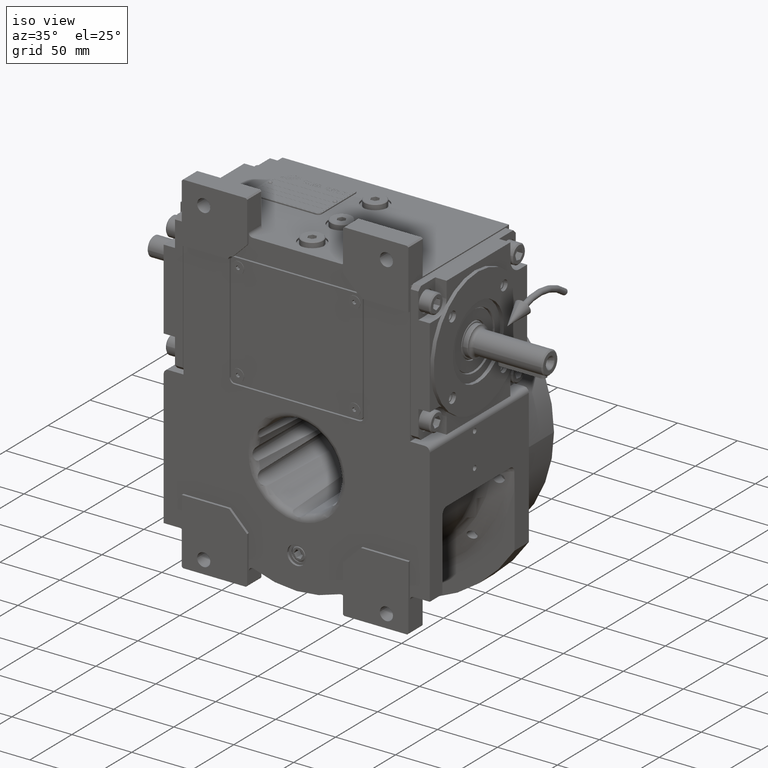
[diagram: clean part render]
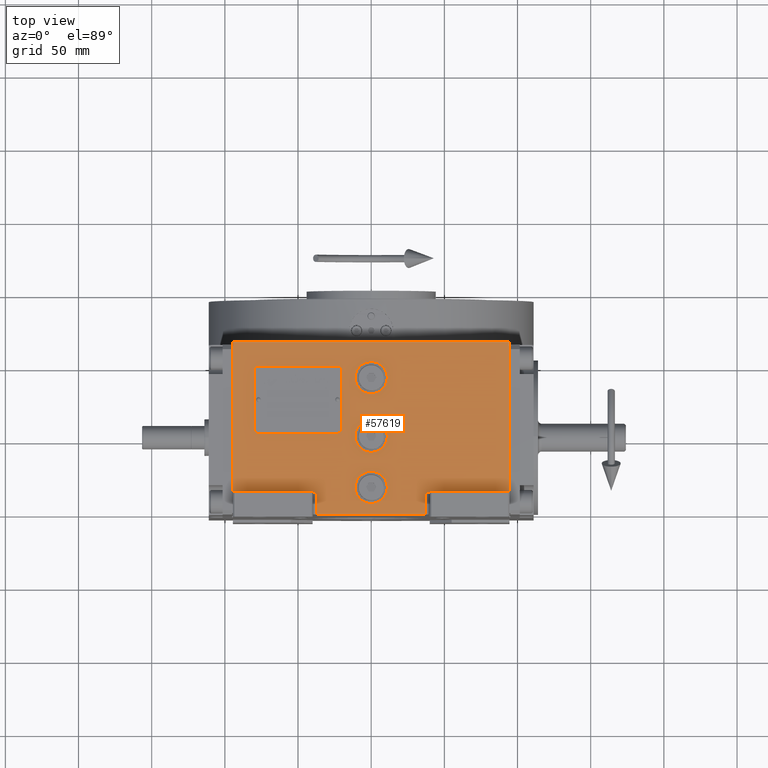
[diagram: tour spotlight — one face highlighted and labeled with its STEP entity id]
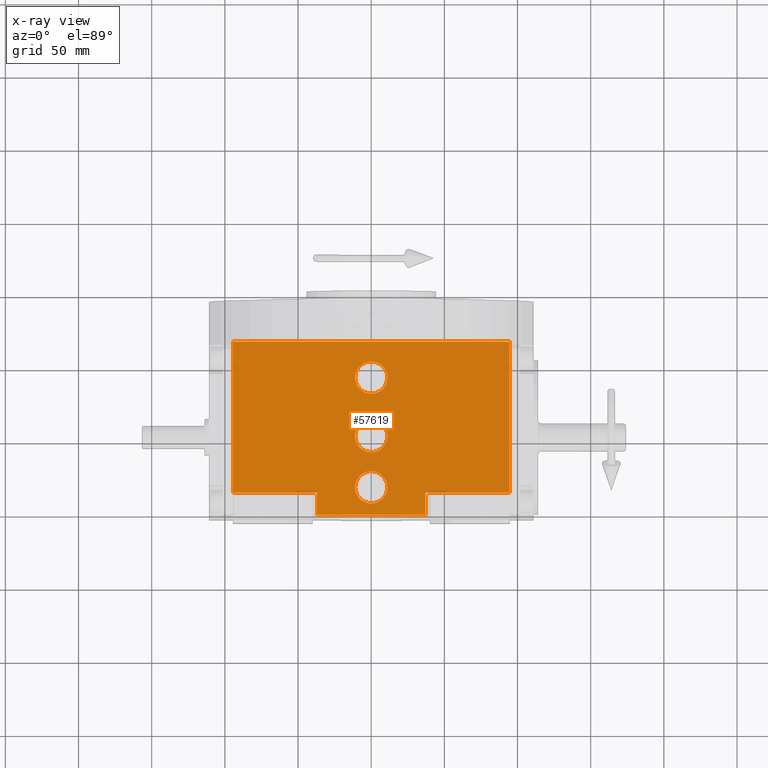
[diagram: x-ray of the same camera — body ghosted, this tour face saturated]
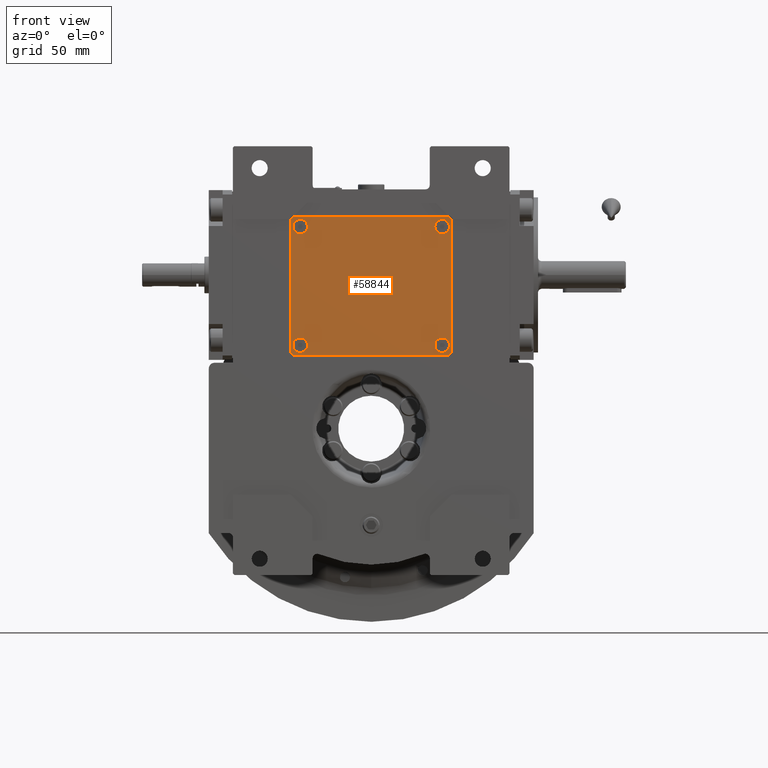
[diagram: tour spotlight — one face highlighted and labeled with its STEP entity id]
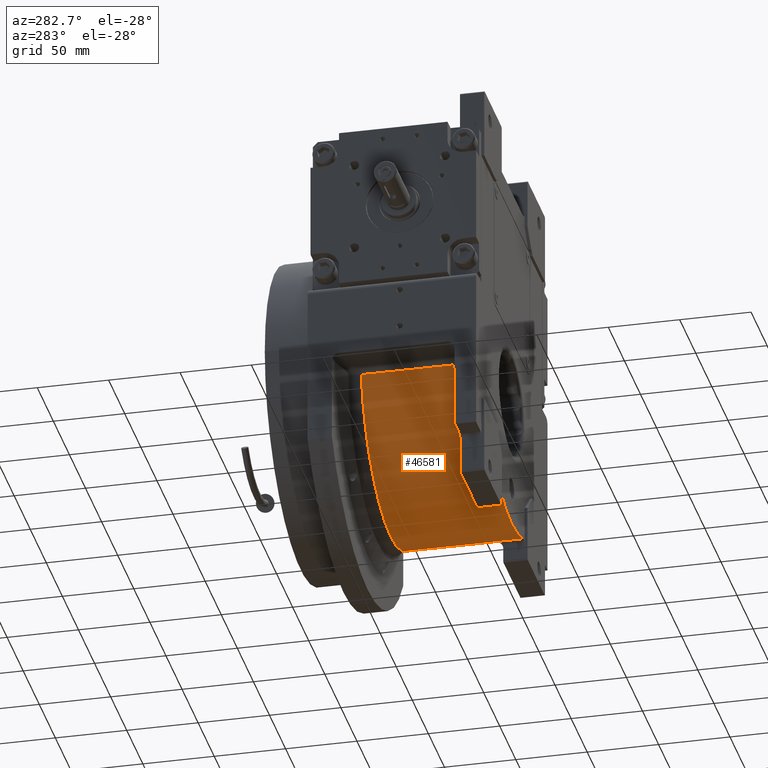
[diagram: tour spotlight — one face highlighted and labeled with its STEP entity id]
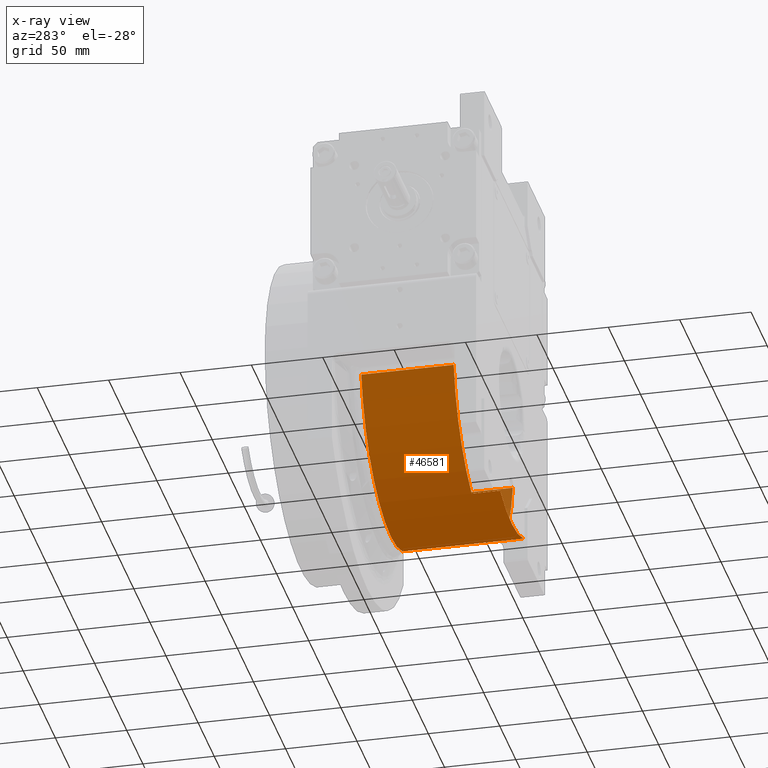
[diagram: x-ray of the same camera — body ghosted, this tour face saturated]
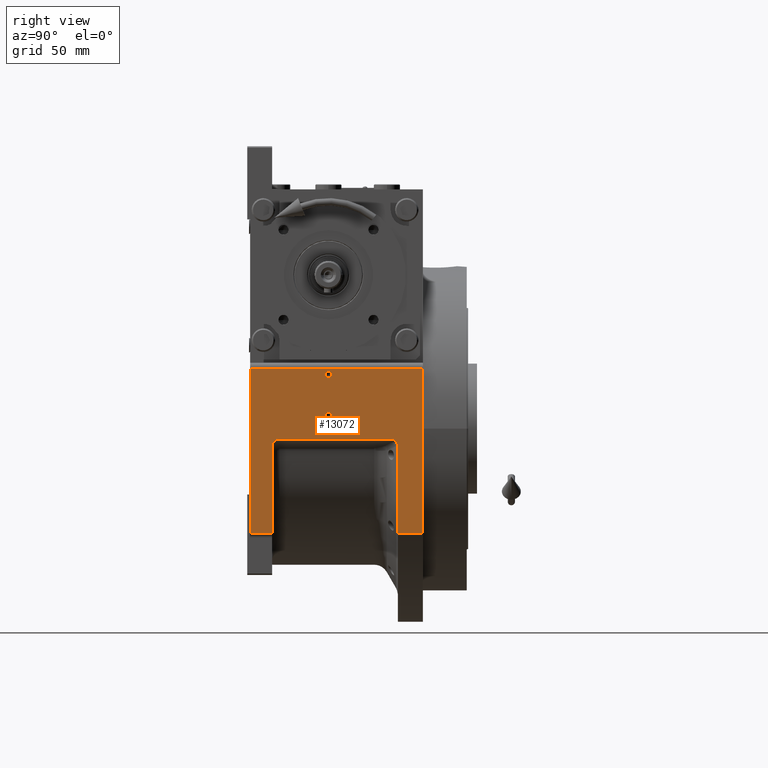
[diagram: tour spotlight — one face highlighted and labeled with its STEP entity id]
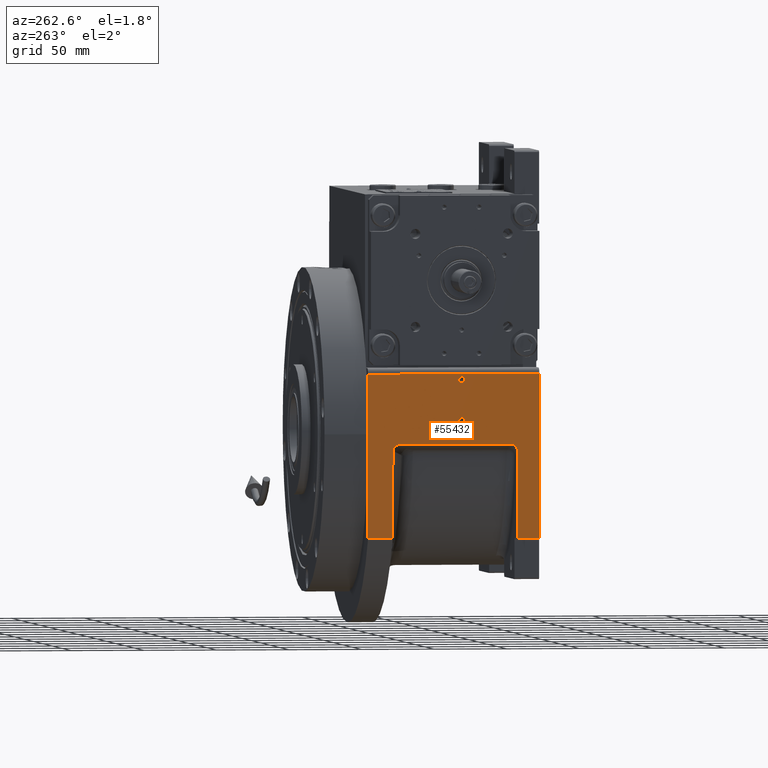
[diagram: tour spotlight — one face highlighted and labeled with its STEP entity id]
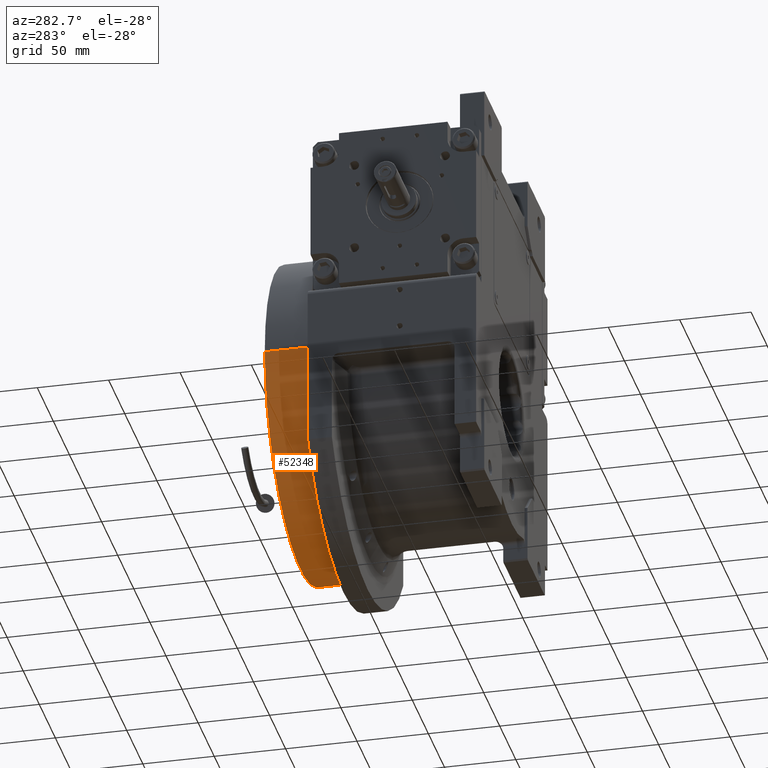
[diagram: tour spotlight — one face highlighted and labeled with its STEP entity id]
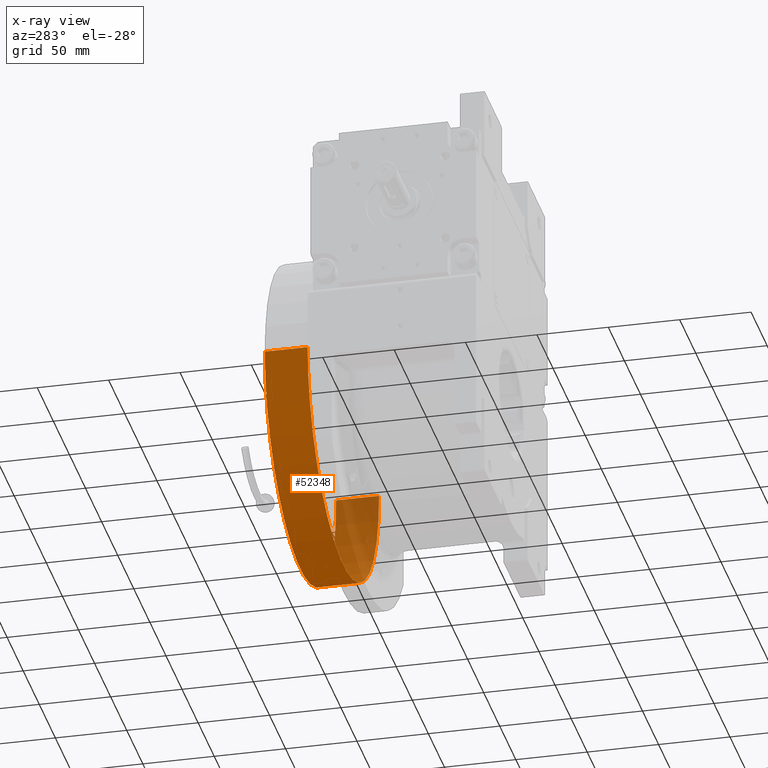
[diagram: x-ray of the same camera — body ghosted, this tour face saturated]
A machine part: a face-by-face anatomy tour. The part has 2011 B-rep faces; the first image is the clean iso view, then the 6 largest visible faces are spotlighted one at a time (largest first), each with its STEP entity span.

Face 1 — top view, entity #57619. An x-ray twin of the same camera follows (body ghosted, this face saturated) — the face is partly hidden behind the body. In plain terms, the highlighted planar face has unit normal (0, 0, 1).
Definition (entity closure, byte-faithful):
#39 = DIRECTION ( 'NONE',  ( 1.000000000000000000, 0.000000000000000000, 0.000000000000000000 ) ) ;
#88 = DIRECTION ( 'NONE',  ( 1.000000000000000000, 0.000000000000000000, 0.000000000000000000 ) ) ;
#313 = VECTOR ( 'NONE', #5441, 1000.000000000000000 ) ;
#797 = DIRECTION ( 'NONE',  ( 0.000000000000000000, 1.000000000000000000, 0.000000000000000000 ) ) ;
#820 = CARTESIAN_POINT ( 'NONE',  ( 0.000000000000000000, 40.00000000000000000, 163.5000000000000000 ) ) ;
#1831 = VECTOR ( 'NONE', #45560, 1000.000000000000000 ) ;
#2034 = ORIENTED_EDGE ( 'NONE', *, *, #5638, .F. ) ;
#2112 = CARTESIAN_POINT ( 'NONE',  ( 94.50000000000000000, 64.50000000000000000, 163.5000000000000000 ) ) ;
#2154 = CARTESIAN_POINT ( 'NONE',  ( 0.000000000000000000, -35.00000000000000000, 163.5000000000000000 ) ) ;
#2364 = VERTEX_POINT ( 'NONE', #31953 ) ;
#2459 = CARTESIAN_POINT ( 'NONE',  ( 0.000000000000000000, 40.00000000000000000, 163.5000000000000000 ) ) ;
#2936 = FACE_OUTER_BOUND ( 'NONE', #44080, .T. ) ;
#3433 = AXIS2_PLACEMENT_3D ( 'NONE', #820, #44387, #53889 ) ;
#3924 = ORIENTED_EDGE ( 'NONE', *, *, #5470, .F. ) ;
#4187 = EDGE_LOOP ( 'NONE', ( #17563, #35818 ) ) ;
#5441 = DIRECTION ( 'NONE',  ( 0.000000000000000000, 1.000000000000000000, 0.000000000000000000 ) ) ;
#5470 = EDGE_CURVE ( 'NONE', #57409, #16273, #33749, .T. ) ;
#5557 = CIRCLE ( 'NONE', #14442, 11.00000000000000000 ) ;
#5638 = EDGE_CURVE ( 'NONE', #21820, #16528, #45423, .T. ) ;
#5755 = VECTOR ( 'NONE', #797, 1000.000000000000000 ) ;
#6741 = DIRECTION ( 'NONE',  ( 0.000000000000000000, 0.000000000000000000, 1.000000000000000000 ) ) ;
#8241 = EDGE_CURVE ( 'NONE', #64306, #48248, #18570, .T. ) ;
#10480 = CIRCLE ( 'NONE', #41945, 11.00000000000000000 ) ;
#11767 = CARTESIAN_POINT ( 'NONE',  ( 94.50000000000000000, -38.50000000000000000, 163.5000000000000000 ) ) ;
#12272 = EDGE_LOOP ( 'NONE', ( #46484, #69491 ) ) ;
#12305 = AXIS2_PLACEMENT_3D ( 'NONE', #2459, #23888, #45345 ) ;
#12421 = CARTESIAN_POINT ( 'NONE',  ( -94.50000000000000000, -38.50000000000000000, 163.5000000000000000 ) ) ;
#13765 = EDGE_CURVE ( 'NONE', #55037, #48248, #67610, .T. ) ;
#13807 = FACE_BOUND ( 'NONE', #43035, .T. ) ;
#14442 = AXIS2_PLACEMENT_3D ( 'NONE', #51707, #62924, #30944 ) ;
#14476 = EDGE_CURVE ( 'NONE', #55037, #21674, #48971, .T. ) ;
#15240 = AXIS2_PLACEMENT_3D ( 'NONE', #35250, #29980, #51452 ) ;
#16273 = VERTEX_POINT ( 'NONE', #62565 ) ;
#16528 = VERTEX_POINT ( 'NONE', #2112 ) ;
#17274 = CARTESIAN_POINT ( 'NONE',  ( 36.99999999999934630, -38.50000000000000000, 163.5000000000000000 ) ) ;
#17563 = ORIENTED_EDGE ( 'NONE', *, *, #51220, .F. ) ;
#17994 = ORIENTED_EDGE ( 'NONE', *, *, #13765, .T. ) ;
#18570 = LINE ( 'NONE', #24545, #36916 ) ;
#19733 = ORIENTED_EDGE ( 'NONE', *, *, #45759, .T. ) ;
#20021 = CARTESIAN_POINT ( 'NONE',  ( 0.000000000000000000, -35.00000000000000000, 163.5000000000000000 ) ) ;
#20268 = EDGE_CURVE ( 'NONE', #21508, #43463, #10480, .T. ) ;
#20496 = CARTESIAN_POINT ( 'NONE',  ( -36.99999999999929656, -53.50000000000000000, 163.5000000000000000 ) ) ;
#21508 = VERTEX_POINT ( 'NONE', #46419 ) ;
#21674 = VERTEX_POINT ( 'NONE', #48873 ) ;
#21820 = VERTEX_POINT ( 'NONE', #23518 ) ;
#23518 = CARTESIAN_POINT ( 'NONE',  ( -94.50000000000000000, 64.50000000000000000, 163.5000000000000000 ) ) ;
#23712 = VERTEX_POINT ( 'NONE', #43840 ) ;
#23820 = VECTOR ( 'NONE', #88, 1000.000000000000000 ) ;
#23888 = DIRECTION ( 'NONE',  ( 0.000000000000000000, 0.000000000000000000, 1.000000000000000000 ) ) ;
#24365 = FACE_BOUND ( 'NONE', #4187, .T. ) ;
#24545 = CARTESIAN_POINT ( 'NONE',  ( 36.99999999999934630, -38.50000000000000000, 163.5000000000000000 ) ) ;
#26740 = LINE ( 'NONE', #54486, #67210 ) ;
#27384 = CIRCLE ( 'NONE', #28471, 11.00000000000000000 ) ;
#28440 = DIRECTION ( 'NONE',  ( 0.000000000000000000, -1.000000000000000000, 0.000000000000000000 ) ) ;
#28471 = AXIS2_PLACEMENT_3D ( 'NONE', #20021, #62536, #52376 ) ;
#29980 = DIRECTION ( 'NONE',  ( 0.000000000000000000, 0.000000000000000000, 1.000000000000000000 ) ) ;
#30862 = CARTESIAN_POINT ( 'NONE',  ( 0.000000000000000000, 0.000000000000000000, 163.5000000000000000 ) ) ;
#30944 = DIRECTION ( 'NONE',  ( 1.000000000000000000, 0.000000000000000000, 0.000000000000000000 ) ) ;
#31710 = CARTESIAN_POINT ( 'NONE',  ( -36.99999999999929656, -53.50000000000000000, 163.5000000000000000 ) ) ;
#31772 = EDGE_CURVE ( 'NONE', #23712, #21820, #33520, .T. ) ;
#31953 = CARTESIAN_POINT ( 'NONE',  ( 11.00000000000000000, -1.179289943096200059E-15, 163.5000000000000000 ) ) ;
#32755 = ORIENTED_EDGE ( 'NONE', *, *, #8241, .F. ) ;
#33520 = LINE ( 'NONE', #12421, #313 ) ;
#33749 = CIRCLE ( 'NONE', #3433, 11.00000000000000000 ) ;
#34174 = DIRECTION ( 'NONE',  ( 1.000000000000000000, 0.000000000000000000, 0.000000000000000000 ) ) ;
#34801 = CARTESIAN_POINT ( 'NONE',  ( -11.00000000000000000, 0.000000000000000000, 163.5000000000000000 ) ) ;
#34838 = VECTOR ( 'NONE', #34174, 1000.000000000000000 ) ;
#35110 = VERTEX_POINT ( 'NONE', #34801 ) ;
#35250 = CARTESIAN_POINT ( 'NONE',  ( -94.50000000000000000, -53.50000000000000000, 163.5000000000000000 ) ) ;
#35818 = ORIENTED_EDGE ( 'NONE', *, *, #20268, .F. ) ;
#36916 = VECTOR ( 'NONE', #28440, 1000.000000000000000 ) ;
#40216 = FACE_BOUND ( 'NONE', #12272, .T. ) ;
#41450 = CIRCLE ( 'NONE', #12305, 11.00000000000000000 ) ;
#41451 = ORIENTED_EDGE ( 'NONE', *, *, #46017, .F. ) ;
#41945 = AXIS2_PLACEMENT_3D ( 'NONE', #2154, #6741, #49619 ) ;
#43035 = EDGE_LOOP ( 'NONE', ( #3924, #41451 ) ) ;
#43463 = VERTEX_POINT ( 'NONE', #65533 ) ;
#43840 = CARTESIAN_POINT ( 'NONE',  ( -94.50000000000000000, -38.50000000000000000, 163.5000000000000000 ) ) ;
#44080 = EDGE_LOOP ( 'NONE', ( #17994, #32755, #47790, #52159, #2034, #68223, #19733, #65399 ) ) ;
#44196 = EDGE_CURVE ( 'NONE', #2364, #35110, #5557, .T. ) ;
#44387 = DIRECTION ( 'NONE',  ( 0.000000000000000000, 0.000000000000000000, 1.000000000000000000 ) ) ;
#44772 = EDGE_CURVE ( 'NONE', #35110, #2364, #48263, .T. ) ;
#45345 = DIRECTION ( 'NONE',  ( -1.000000000000000000, 0.000000000000000000, 0.000000000000000000 ) ) ;
#45423 = LINE ( 'NONE', #66815, #34838 ) ;
#45560 = DIRECTION ( 'NONE',  ( 0.000000000000000000, 1.000000000000000000, 0.000000000000000000 ) ) ;
#45759 = EDGE_CURVE ( 'NONE', #23712, #21674, #26740, .T. ) ;
#45835 = PLANE ( 'NONE',  #15240 ) ;
#46017 = EDGE_CURVE ( 'NONE', #16273, #57409, #41450, .T. ) ;
#46419 = CARTESIAN_POINT ( 'NONE',  ( -11.00000000000000000, -35.00000000000000000, 163.5000000000000000 ) ) ;
#46484 = ORIENTED_EDGE ( 'NONE', *, *, #44196, .F. ) ;
#47790 = ORIENTED_EDGE ( 'NONE', *, *, #49833, .T. ) ;
#48248 = VERTEX_POINT ( 'NONE', #59892 ) ;
#48263 = CIRCLE ( 'NONE', #52699, 11.00000000000000000 ) ;
#48873 = CARTESIAN_POINT ( 'NONE',  ( -36.99999999999929656, -38.50000000000000000, 163.5000000000000000 ) ) ;
#48971 = LINE ( 'NONE', #31710, #5755 ) ;
#49619 = DIRECTION ( 'NONE',  ( -1.000000000000000000, 0.000000000000000000, 0.000000000000000000 ) ) ;
#49833 = EDGE_CURVE ( 'NONE', #64306, #62433, #54536, .T. ) ;
#51220 = EDGE_CURVE ( 'NONE', #43463, #21508, #27384, .T. ) ;
#51452 = DIRECTION ( 'NONE',  ( 1.000000000000000000, 0.000000000000000000, 0.000000000000000000 ) ) ;
#51707 = CARTESIAN_POINT ( 'NONE',  ( 0.000000000000000000, 0.000000000000000000, 163.5000000000000000 ) ) ;
#52159 = ORIENTED_EDGE ( 'NONE', *, *, #55751, .T. ) ;
#52376 = DIRECTION ( 'NONE',  ( 1.000000000000000000, 0.000000000000000000, 0.000000000000000000 ) ) ;
#52699 = AXIS2_PLACEMENT_3D ( 'NONE', #30862, #62143, #57917 ) ;
#53889 = DIRECTION ( 'NONE',  ( 1.000000000000000000, 0.000000000000000000, 0.000000000000000000 ) ) ;
#54155 = VECTOR ( 'NONE', #63363, 1000.000000000000000 ) ;
#54486 = CARTESIAN_POINT ( 'NONE',  ( -94.50000000000000000, -38.50000000000000000, 163.5000000000000000 ) ) ;
#54536 = LINE ( 'NONE', #17274, #23820 ) ;
#55037 = VERTEX_POINT ( 'NONE', #64619 ) ;
#55751 = EDGE_CURVE ( 'NONE', #62433, #16528, #61345, .T. ) ;
#57409 = VERTEX_POINT ( 'NONE', #60260 ) ;
#57619 = ADVANCED_FACE ( 'NONE', ( #40216, #24365, #13807, #2936 ), #45835, .T. ) ;
#57917 = DIRECTION ( 'NONE',  ( -1.000000000000000000, 0.000000000000000000, 0.000000000000000000 ) ) ;
#59892 = CARTESIAN_POINT ( 'NONE',  ( 36.99999999999934630, -53.50000000000000000, 163.5000000000000000 ) ) ;
#60260 = CARTESIAN_POINT ( 'NONE',  ( 11.00000000000000000, 40.00000000000000000, 163.5000000000000000 ) ) ;
#61345 = LINE ( 'NONE', #62631, #1831 ) ;
#62143 = DIRECTION ( 'NONE',  ( 0.000000000000000000, 0.000000000000000000, 1.000000000000000000 ) ) ;
#62433 = VERTEX_POINT ( 'NONE', #11767 ) ;
#62536 = DIRECTION ( 'NONE',  ( 0.000000000000000000, 0.000000000000000000, 1.000000000000000000 ) ) ;
#62565 = CARTESIAN_POINT ( 'NONE',  ( -11.00000000000000000, 40.00000000000000000, 163.5000000000000000 ) ) ;
#62631 = CARTESIAN_POINT ( 'NONE',  ( 94.50000000000000000, -38.50000000000000000, 163.5000000000000000 ) ) ;
#62924 = DIRECTION ( 'NONE',  ( 0.000000000000000000, 0.000000000000000000, 1.000000000000000000 ) ) ;
#63363 = DIRECTION ( 'NONE',  ( 1.000000000000000000, 0.000000000000000000, 0.000000000000000000 ) ) ;
#64306 = VERTEX_POINT ( 'NONE', #68273 ) ;
#64619 = CARTESIAN_POINT ( 'NONE',  ( -36.99999999999929656, -53.50000000000000000, 163.5000000000000000 ) ) ;
#65399 = ORIENTED_EDGE ( 'NONE', *, *, #14476, .F. ) ;
#65533 = CARTESIAN_POINT ( 'NONE',  ( 11.00000000000000000, -35.00000000000000000, 163.5000000000000000 ) ) ;
#66815 = CARTESIAN_POINT ( 'NONE',  ( -94.50000000000000000, 64.50000000000000000, 163.5000000000000000 ) ) ;
#67210 = VECTOR ( 'NONE', #39, 1000.000000000000000 ) ;
#67610 = LINE ( 'NONE', #20496, #54155 ) ;
#68223 = ORIENTED_EDGE ( 'NONE', *, *, #31772, .F. ) ;
#68273 = CARTESIAN_POINT ( 'NONE',  ( 36.99999999999934630, -38.50000000000000000, 163.5000000000000000 ) ) ;
#69491 = ORIENTED_EDGE ( 'NONE', *, *, #44772, .F. ) ;

Face 2 — front view, entity #58844. In plain terms, the highlighted planar face has unit normal (0, -1, -0).
Definition (entity closure, byte-faithful):
#350 = VERTEX_POINT ( 'NONE', #7440 ) ;
#529 = EDGE_CURVE ( 'NONE', #21149, #10324, #28804, .T. ) ;
#882 = AXIS2_PLACEMENT_3D ( 'NONE', #21544, #31732, #64403 ) ;
#1190 = LINE ( 'NONE', #55616, #40125 ) ;
#2367 = CIRCLE ( 'NONE', #51766, 4.499999999999997335 ) ;
#2470 = ORIENTED_EDGE ( 'NONE', *, *, #68145, .T. ) ;
#3892 = DIRECTION ( 'NONE',  ( 0.7071067811865474617, 0.7071067811865474617, 9.367723249499506431E-31 ) ) ;
#4084 = ORIENTED_EDGE ( 'NONE', *, *, #63123, .T. ) ;
#4181 = DIRECTION ( 'NONE',  ( -9.367723249499515189E-31, -1.000000000000000000, 0.000000000000000000 ) ) ;
#4697 = FACE_BOUND ( 'NONE', #33518, .T. ) ;
#4875 = VERTEX_POINT ( 'NONE', #14342 ) ;
#4979 = ORIENTED_EDGE ( 'NONE', *, *, #46550, .F. ) ;
#5327 = EDGE_CURVE ( 'NONE', #10324, #21149, #20269, .T. ) ;
#6332 = CARTESIAN_POINT ( 'NONE',  ( 53.00000000000026290, 40.49999999999999289, 3.000000000000002665 ) ) ;
#6747 = CIRCLE ( 'NONE', #44885, 4.499999999999997335 ) ;
#7210 = AXIS2_PLACEMENT_3D ( 'NONE', #32149, #10715, #43065 ) ;
#7380 = CARTESIAN_POINT ( 'NONE',  ( -53.00000000000000000, -47.49999999999973710, 3.000000000000266454 ) ) ;
#7440 = CARTESIAN_POINT ( 'NONE',  ( -55.00000000000000000, -45.49999999999973710, 3.000000000000266454 ) ) ;
#7488 = DIRECTION ( 'NONE',  ( -1.000000000000000000, -9.367723249499515189E-31, -9.255241265799875595E-31 ) ) ;
#7600 = DIRECTION ( 'NONE',  ( -1.000000000000000000, -1.541976423090496028E-15, 0.000000000000000000 ) ) ;
#8128 = DIRECTION ( 'NONE',  ( -1.000000000000000000, -1.541976423090496028E-15, 0.000000000000000000 ) ) ;
#8867 = CIRCLE ( 'NONE', #41434, 4.499999999999997335 ) ;
#9240 = DIRECTION ( 'NONE',  ( 1.000000000000000000, 1.541976423090496028E-15, 0.000000000000000000 ) ) ;
#10255 = CARTESIAN_POINT ( 'NONE',  ( -52.99999999999973710, -40.49999999999973710, 3.000000000000002665 ) ) ;
#10301 = FACE_OUTER_BOUND ( 'NONE', #48158, .T. ) ;
#10324 = VERTEX_POINT ( 'NONE', #32806 ) ;
#10566 = VERTEX_POINT ( 'NONE', #15144 ) ;
#10715 = DIRECTION ( 'NONE',  ( 9.255241265799875595E-31, 0.000000000000000000, 1.000000000000000000 ) ) ;
#13197 = DIRECTION ( 'NONE',  ( 9.255241265799875595E-31, 0.000000000000000000, 1.000000000000000000 ) ) ;
#13350 = VERTEX_POINT ( 'NONE', #63306 ) ;
#13537 = CARTESIAN_POINT ( 'NONE',  ( -48.49999999999973710, 40.49999999999999289, 3.000000000000259348 ) ) ;
#13908 = CARTESIAN_POINT ( 'NONE',  ( -48.49999999999973710, -40.49999999999973710, 3.000000000000002665 ) ) ;
#13932 = EDGE_CURVE ( 'NONE', #52541, #34622, #31858, .T. ) ;
#14342 = CARTESIAN_POINT ( 'NONE',  ( -54.99999999999973710, 45.50000000000000000, 3.000000000000266454 ) ) ;
#14625 = DIRECTION ( 'NONE',  ( -1.000000000000000000, -1.541976423090496028E-15, 0.000000000000000000 ) ) ;
#14762 = DIRECTION ( 'NONE',  ( -0.7071067811865474617, -0.7071067811865474617, -9.367723249499506431E-31 ) ) ;
#15144 = CARTESIAN_POINT ( 'NONE',  ( 53.00000000000000000, -47.50000000000000000, 3.000000000000002665 ) ) ;
#15317 = CARTESIAN_POINT ( 'NONE',  ( 55.00000000000026290, 45.50000000000000000, 3.000000000000002665 ) ) ;
#15357 = EDGE_CURVE ( 'NONE', #21754, #15624, #31809, .T. ) ;
#15624 = VERTEX_POINT ( 'NONE', #60268 ) ;
#15780 = ORIENTED_EDGE ( 'NONE', *, *, #17668, .T. ) ;
#16340 = CARTESIAN_POINT ( 'NONE',  ( 55.00000000000000000, -45.50000000000000000, 3.000000000000002665 ) ) ;
#16738 = DIRECTION ( 'NONE',  ( 1.000000000000000000, 1.541976423090496028E-15, 0.000000000000000000 ) ) ;
#17668 = EDGE_CURVE ( 'NONE', #54497, #10566, #29492, .T. ) ;
#17688 = VERTEX_POINT ( 'NONE', #43964 ) ;
#19295 = EDGE_CURVE ( 'NONE', #17688, #22992, #46325, .T. ) ;
#20024 = ORIENTED_EDGE ( 'NONE', *, *, #19295, .F. ) ;
#20128 = VECTOR ( 'NONE', #4181, 1000.000000000000000 ) ;
#20269 = CIRCLE ( 'NONE', #43854, 4.499999999999997335 ) ;
#21149 = VERTEX_POINT ( 'NONE', #10255 ) ;
#21199 = PLANE ( 'NONE',  #882 ) ;
#21281 = CARTESIAN_POINT ( 'NONE',  ( 53.00000000000026290, 47.50000000000000000, 3.000000000000002665 ) ) ;
#21544 = CARTESIAN_POINT ( 'NONE',  ( 0.000000000000000000, 0.000000000000000000, 3.000000000000002665 ) ) ;
#21633 = VECTOR ( 'NONE', #34774, 1000.000000000000000 ) ;
#21754 = VERTEX_POINT ( 'NONE', #49220 ) ;
#21883 = VECTOR ( 'NONE', #48730, 1000.000000000000000 ) ;
#22712 = EDGE_LOOP ( 'NONE', ( #44323, #59417 ) ) ;
#22992 = VERTEX_POINT ( 'NONE', #45380 ) ;
#24615 = LINE ( 'NONE', #56930, #49544 ) ;
#24624 = CARTESIAN_POINT ( 'NONE',  ( 53.00000000000000000, -47.50000000000000000, 3.000000000000002665 ) ) ;
#25027 = CARTESIAN_POINT ( 'NONE',  ( -55.00000000000000000, -45.49999999999973710, 3.000000000000266454 ) ) ;
#25892 = VERTEX_POINT ( 'NONE', #42265 ) ;
#26034 = ORIENTED_EDGE ( 'NONE', *, *, #64211, .T. ) ;
#26422 = EDGE_CURVE ( 'NONE', #53288, #63458, #1190, .T. ) ;
#27764 = EDGE_CURVE ( 'NONE', #22992, #17688, #8867, .T. ) ;
#28119 = EDGE_LOOP ( 'NONE', ( #67453, #4979 ) ) ;
#28804 = CIRCLE ( 'NONE', #40063, 4.499999999999997335 ) ;
#29492 = LINE ( 'NONE', #7380, #21633 ) ;
#31732 = DIRECTION ( 'NONE',  ( -9.255241265799875595E-31, -1.734010775707216474E-60, 1.000000000000000000 ) ) ;
#31809 = LINE ( 'NONE', #16340, #21883 ) ;
#31858 = CIRCLE ( 'NONE', #7210, 4.499999999999997335 ) ;
#32086 = FACE_BOUND ( 'NONE', #61061, .T. ) ;
#32149 = CARTESIAN_POINT ( 'NONE',  ( 48.50000000000026290, 40.49999999999999289, 3.000000000000002665 ) ) ;
#32806 = CARTESIAN_POINT ( 'NONE',  ( -43.99999999999973710, -40.49999999999973710, 2.999999999999995559 ) ) ;
#33518 = EDGE_LOOP ( 'NONE', ( #20024, #62010 ) ) ;
#34622 = VERTEX_POINT ( 'NONE', #61678 ) ;
#34774 = DIRECTION ( 'NONE',  ( 1.000000000000000000, 9.367723249499515189E-31, 9.255241265799875595E-31 ) ) ;
#35349 = DIRECTION ( 'NONE',  ( 9.255241265799875595E-31, 0.000000000000000000, 1.000000000000000000 ) ) ;
#36147 = LINE ( 'NONE', #53024, #20128 ) ;
#36416 = LINE ( 'NONE', #15317, #60066 ) ;
#37362 = FACE_BOUND ( 'NONE', #22712, .T. ) ;
#38242 = VECTOR ( 'NONE', #68617, 1000.000000000000114 ) ;
#38514 = ORIENTED_EDGE ( 'NONE', *, *, #42919, .T. ) ;
#39752 = ORIENTED_EDGE ( 'NONE', *, *, #5327, .F. ) ;
#40063 = AXIS2_PLACEMENT_3D ( 'NONE', #51348, #62907, #8128 ) ;
#40125 = VECTOR ( 'NONE', #7488, 1000.000000000000000 ) ;
#41010 = CARTESIAN_POINT ( 'NONE',  ( 48.50000000000026290, 40.49999999999999289, 3.000000000000002665 ) ) ;
#41346 = CARTESIAN_POINT ( 'NONE',  ( -53.00000000000000000, -47.49999999999973710, 3.000000000000266454 ) ) ;
#41434 = AXIS2_PLACEMENT_3D ( 'NONE', #65910, #59262, #65564 ) ;
#41599 = FACE_BOUND ( 'NONE', #28119, .T. ) ;
#42114 = EDGE_CURVE ( 'NONE', #4875, #350, #36147, .T. ) ;
#42265 = CARTESIAN_POINT ( 'NONE',  ( -52.99999999999973710, 40.49999999999999289, 3.000000000000259348 ) ) ;
#42604 = EDGE_CURVE ( 'NONE', #13350, #25892, #51389, .T. ) ;
#42919 = EDGE_CURVE ( 'NONE', #10566, #21754, #62554, .T. ) ;
#43065 = DIRECTION ( 'NONE',  ( 1.000000000000000000, 1.541976423090496028E-15, 0.000000000000000000 ) ) ;
#43854 = AXIS2_PLACEMENT_3D ( 'NONE', #13908, #35349, #56773 ) ;
#43964 = CARTESIAN_POINT ( 'NONE',  ( 53.00000000000026290, -40.50000000000000000, 2.999999999999738876 ) ) ;
#44323 = ORIENTED_EDGE ( 'NONE', *, *, #42604, .F. ) ;
#44885 = AXIS2_PLACEMENT_3D ( 'NONE', #41010, #52603, #14625 ) ;
#45380 = CARTESIAN_POINT ( 'NONE',  ( 44.00000000000026290, -40.50000000000000000, 2.999999999999995559 ) ) ;
#46325 = CIRCLE ( 'NONE', #64244, 4.499999999999997335 ) ;
#46550 = EDGE_CURVE ( 'NONE', #34622, #52541, #6747, .T. ) ;
#47576 = CARTESIAN_POINT ( 'NONE',  ( -48.49999999999973710, 40.49999999999999289, 3.000000000000259348 ) ) ;
#47860 = EDGE_CURVE ( 'NONE', #25892, #13350, #2367, .T. ) ;
#48158 = EDGE_LOOP ( 'NONE', ( #67565, #2470, #58198, #4084, #67991, #26034, #15780, #38514 ) ) ;
#48730 = DIRECTION ( 'NONE',  ( 9.367723249499515189E-31, 1.000000000000000000, 0.000000000000000000 ) ) ;
#49105 = DIRECTION ( 'NONE',  ( 9.255241265799875595E-31, 0.000000000000000000, 1.000000000000000000 ) ) ;
#49220 = CARTESIAN_POINT ( 'NONE',  ( 55.00000000000000000, -45.50000000000000000, 3.000000000000002665 ) ) ;
#49544 = VECTOR ( 'NONE', #14762, 1000.000000000000114 ) ;
#50911 = CARTESIAN_POINT ( 'NONE',  ( -52.99999999999973710, 47.50000000000000000, 3.000000000000259348 ) ) ;
#51348 = CARTESIAN_POINT ( 'NONE',  ( -48.49999999999973710, -40.49999999999973710, 3.000000000000002665 ) ) ;
#51389 = CIRCLE ( 'NONE', #58092, 4.499999999999997335 ) ;
#51766 = AXIS2_PLACEMENT_3D ( 'NONE', #13537, #13197, #7600 ) ;
#52541 = VERTEX_POINT ( 'NONE', #6332 ) ;
#52603 = DIRECTION ( 'NONE',  ( 9.255241265799875595E-31, 0.000000000000000000, 1.000000000000000000 ) ) ;
#53024 = CARTESIAN_POINT ( 'NONE',  ( -54.99999999999973710, 45.50000000000000000, 3.000000000000266454 ) ) ;
#53288 = VERTEX_POINT ( 'NONE', #21281 ) ;
#54497 = VERTEX_POINT ( 'NONE', #41346 ) ;
#55616 = CARTESIAN_POINT ( 'NONE',  ( 53.00000000000026290, 47.50000000000000000, 3.000000000000002665 ) ) ;
#56773 = DIRECTION ( 'NONE',  ( 1.000000000000000000, 1.541976423090496028E-15, 0.000000000000000000 ) ) ;
#56930 = CARTESIAN_POINT ( 'NONE',  ( -52.99999999999973710, 47.50000000000000000, 3.000000000000259348 ) ) ;
#57029 = DIRECTION ( 'NONE',  ( 9.255241265799875595E-31, 0.000000000000000000, 1.000000000000000000 ) ) ;
#58092 = AXIS2_PLACEMENT_3D ( 'NONE', #47576, #57029, #9240 ) ;
#58198 = ORIENTED_EDGE ( 'NONE', *, *, #26422, .T. ) ;
#58844 = ADVANCED_FACE ( 'NONE', ( #10301, #41599, #37362, #4697, #32086 ), #21199, .T. ) ;
#59261 = CARTESIAN_POINT ( 'NONE',  ( 48.50000000000026290, -40.50000000000000000, 2.999999999999738876 ) ) ;
#59262 = DIRECTION ( 'NONE',  ( 9.255241265799875595E-31, 0.000000000000000000, 1.000000000000000000 ) ) ;
#59417 = ORIENTED_EDGE ( 'NONE', *, *, #47860, .F. ) ;
#60066 = VECTOR ( 'NONE', #69091, 1000.000000000000114 ) ;
#60268 = CARTESIAN_POINT ( 'NONE',  ( 55.00000000000026290, 45.50000000000000000, 3.000000000000002665 ) ) ;
#61061 = EDGE_LOOP ( 'NONE', ( #39752, #66670 ) ) ;
#61678 = CARTESIAN_POINT ( 'NONE',  ( 44.00000000000026290, 40.49999999999999289, 3.000000000000002665 ) ) ;
#62010 = ORIENTED_EDGE ( 'NONE', *, *, #27764, .F. ) ;
#62554 = LINE ( 'NONE', #24624, #64864 ) ;
#62907 = DIRECTION ( 'NONE',  ( 9.255241265799875595E-31, 0.000000000000000000, 1.000000000000000000 ) ) ;
#63123 = EDGE_CURVE ( 'NONE', #63458, #4875, #24615, .T. ) ;
#63306 = CARTESIAN_POINT ( 'NONE',  ( -43.99999999999973710, 40.49999999999999289, 3.000000000000009770 ) ) ;
#63320 = LINE ( 'NONE', #25027, #38242 ) ;
#63458 = VERTEX_POINT ( 'NONE', #50911 ) ;
#64211 = EDGE_CURVE ( 'NONE', #350, #54497, #63320, .T. ) ;
#64244 = AXIS2_PLACEMENT_3D ( 'NONE', #59261, #49105, #16738 ) ;
#64403 = DIRECTION ( 'NONE',  ( 1.000000000000000000, 9.367723249499515189E-31, 9.255241265799875595E-31 ) ) ;
#64864 = VECTOR ( 'NONE', #3892, 1000.000000000000114 ) ;
#65564 = DIRECTION ( 'NONE',  ( -1.000000000000000000, -1.541976423090496028E-15, 0.000000000000000000 ) ) ;
#65910 = CARTESIAN_POINT ( 'NONE',  ( 48.50000000000026290, -40.50000000000000000, 2.999999999999738876 ) ) ;
#66670 = ORIENTED_EDGE ( 'NONE', *, *, #529, .F. ) ;
#67453 = ORIENTED_EDGE ( 'NONE', *, *, #13932, .F. ) ;
#67565 = ORIENTED_EDGE ( 'NONE', *, *, #15357, .T. ) ;
#67991 = ORIENTED_EDGE ( 'NONE', *, *, #42114, .T. ) ;
#68145 = EDGE_CURVE ( 'NONE', #15624, #53288, #36416, .T. ) ;
#68617 = DIRECTION ( 'NONE',  ( 0.7071067811865474617, -0.7071067811865474617, 3.697785493223490101E-32 ) ) ;
#69091 = DIRECTION ( 'NONE',  ( -0.7071067811865474617, 0.7071067811865474617, -3.697785493223490101E-32 ) ) ;

Face 3 — auxiliary view, entity #46581. An x-ray twin of the same camera follows (body ghosted, this face saturated) — the face is partly hidden behind the body. In plain terms, the highlighted cylindrical surface (partial cylindrical patch) has radius 93 mm, axis along (0, 1, 0).
Definition (entity closure, byte-faithful):
#4324 = CIRCLE ( 'NONE', #11067, 93.00000000000001421 ) ;
#4457 = EDGE_CURVE ( 'NONE', #24335, #18584, #32698, .T. ) ;
#5179 = DIRECTION ( 'NONE',  ( -0.3854166666666659080, 0.000000000000000000, -0.9227426472508768462 ) ) ;
#6005 = CARTESIAN_POINT ( 'NONE',  ( -91.75016228501930016, -33.50000000000000000, -15.19564808333695183 ) ) ;
#6841 = CARTESIAN_POINT ( 'NONE',  ( -91.75016228508779648, -33.50000000000000000, -15.19564808292360070 ) ) ;
#7057 = DIRECTION ( 'NONE',  ( -0.3854166666666672403, 0.000000000000000000, -0.9227426472508764022 ) ) ;
#10105 = CARTESIAN_POINT ( 'NONE',  ( 35.84375000000000000, -33.50000000000000000, -85.81506619433150718 ) ) ;
#10435 = ORIENTED_EDGE ( 'NONE', *, *, #34090, .T. ) ;
#11067 = AXIS2_PLACEMENT_3D ( 'NONE', #57473, #27944, #11106 ) ;
#11106 = DIRECTION ( 'NONE',  ( 0.9865608847878558629, 0.000000000000000000, -0.1633940653959109757 ) ) ;
#12269 = CARTESIAN_POINT ( 'NONE',  ( 91.75016228501930016, 31.21878281274199907, -15.19564808333685058 ) ) ;
#12669 = DIRECTION ( 'NONE',  ( 0.9865608847851539132, -1.678764654171103455E-15, -0.1633940654122239822 ) ) ;
#16151 = CIRCLE ( 'NONE', #45324, 93.00000000000001421 ) ;
#16475 = LINE ( 'NONE', #12269, #30831 ) ;
#16665 = CARTESIAN_POINT ( 'NONE',  ( 35.84375000000000000, -33.50000000000000000, -85.81506619433150718 ) ) ;
#17515 = ORIENTED_EDGE ( 'NONE', *, *, #31040, .F. ) ;
#17938 = DIRECTION ( 'NONE',  ( 5.743225055535190204E-15, 1.000000000000000000, 2.439003765979129920E-14 ) ) ;
#18007 = ORIENTED_EDGE ( 'NONE', *, *, #32852, .T. ) ;
#18584 = VERTEX_POINT ( 'NONE', #64248 ) ;
#20591 = VECTOR ( 'NONE', #58254, 1000.000000000000000 ) ;
#20944 = VERTEX_POINT ( 'NONE', #16665 ) ;
#22402 = LINE ( 'NONE', #43848, #60653 ) ;
#22496 = DIRECTION ( 'NONE',  ( 0.000000000000000000, 1.000000000000000000, 0.000000000000000000 ) ) ;
#23572 = DIRECTION ( 'NONE',  ( 0.000000000000000000, -1.000000000000000000, 0.000000000000000000 ) ) ;
#24335 = VERTEX_POINT ( 'NONE', #6841 ) ;
#24509 = CARTESIAN_POINT ( 'NONE',  ( 35.84375000000000000, -53.50000000000000000, -85.81506619433150718 ) ) ;
#27224 = CARTESIAN_POINT ( 'NONE',  ( -35.84375000000000000, -53.50000000000000000, -85.81506619433150718 ) ) ;
#27944 = DIRECTION ( 'NONE',  ( 0.000000000000000000, 1.000000000000000000, 0.000000000000000000 ) ) ;
#28568 = ORIENTED_EDGE ( 'NONE', *, *, #35421, .T. ) ;
#28749 = VERTEX_POINT ( 'NONE', #24509 ) ;
#28807 = CARTESIAN_POINT ( 'NONE',  ( 1.421085471520200056E-14, -53.50000000000000000, -4.263256414560599853E-14 ) ) ;
#30453 = CARTESIAN_POINT ( 'NONE',  ( -4.517455316885850268E-28, -53.50000000000000000, 0.000000000000000000 ) ) ;
#30831 = VECTOR ( 'NONE', #38285, 1000.000000000000000 ) ;
#31040 = EDGE_CURVE ( 'NONE', #49464, #28749, #49696, .T. ) ;
#32436 = EDGE_CURVE ( 'NONE', #62704, #18584, #16151, .T. ) ;
#32698 = LINE ( 'NONE', #6005, #49925 ) ;
#32852 = EDGE_CURVE ( 'NONE', #46388, #24335, #44267, .T. ) ;
#34090 = EDGE_CURVE ( 'NONE', #20944, #28749, #35767, .T. ) ;
#35370 = DIRECTION ( 'NONE',  ( 0.000000000000000000, 0.000000000000000000, 1.000000000000000000 ) ) ;
#35421 = EDGE_CURVE ( 'NONE', #62704, #39717, #16475, .T. ) ;
#35767 = LINE ( 'NONE', #10105, #20591 ) ;
#36070 = CYLINDRICAL_SURFACE ( 'NONE', #66172, 93.00000000000000000 ) ;
#37289 = ORIENTED_EDGE ( 'NONE', *, *, #32436, .F. ) ;
#37495 = DIRECTION ( 'NONE',  ( 0.000000000000000000, 1.000000000000000000, 0.000000000000000000 ) ) ;
#37927 = EDGE_LOOP ( 'NONE', ( #17515, #61016, #18007, #61725, #37289, #28568, #47762, #10435 ) ) ;
#38285 = DIRECTION ( 'NONE',  ( 0.000000000000000000, -1.000000000000000000, 0.000000000000000000 ) ) ;
#39717 = VERTEX_POINT ( 'NONE', #64126 ) ;
#40664 = DIRECTION ( 'NONE',  ( 0.000000000000000000, 1.000000000000000000, 0.000000000000000000 ) ) ;
#43161 = AXIS2_PLACEMENT_3D ( 'NONE', #69480, #37495, #5179 ) ;
#43406 = EDGE_CURVE ( 'NONE', #39717, #20944, #4324, .T. ) ;
#43848 = CARTESIAN_POINT ( 'NONE',  ( -35.84375000000000000, -53.50000000000000000, -85.81506619433150718 ) ) ;
#44267 = CIRCLE ( 'NONE', #43161, 93.00000000000001421 ) ;
#45324 = AXIS2_PLACEMENT_3D ( 'NONE', #66093, #17938, #12669 ) ;
#45483 = CARTESIAN_POINT ( 'NONE',  ( 91.75016228501930016, 31.21878281274259948, -15.19564808333685058 ) ) ;
#46388 = VERTEX_POINT ( 'NONE', #60717 ) ;
#46581 = ADVANCED_FACE ( 'NONE', ( #61741 ), #36070, .T. ) ;
#47762 = ORIENTED_EDGE ( 'NONE', *, *, #43406, .T. ) ;
#49464 = VERTEX_POINT ( 'NONE', #27224 ) ;
#49696 = CIRCLE ( 'NONE', #64242, 92.99999999999995737 ) ;
#49925 = VECTOR ( 'NONE', #22496, 1000.000000000000000 ) ;
#57473 = CARTESIAN_POINT ( 'NONE',  ( 1.421085471520200056E-14, -33.50000000000000000, 1.421085471520200056E-14 ) ) ;
#58254 = DIRECTION ( 'NONE',  ( 0.000000000000000000, -1.000000000000000000, 0.000000000000000000 ) ) ;
#60653 = VECTOR ( 'NONE', #65244, 1000.000000000000000 ) ;
#60717 = CARTESIAN_POINT ( 'NONE',  ( -35.84375000000000000, -33.50000000000000000, -85.81506619433150718 ) ) ;
#61016 = ORIENTED_EDGE ( 'NONE', *, *, #62061, .T. ) ;
#61725 = ORIENTED_EDGE ( 'NONE', *, *, #4457, .T. ) ;
#61741 = FACE_OUTER_BOUND ( 'NONE', #37927, .T. ) ;
#62061 = EDGE_CURVE ( 'NONE', #49464, #46388, #22402, .T. ) ;
#62704 = VERTEX_POINT ( 'NONE', #45483 ) ;
#64126 = CARTESIAN_POINT ( 'NONE',  ( 91.75016228514499517, -33.50000000000000000, -15.19564808257825028 ) ) ;
#64242 = AXIS2_PLACEMENT_3D ( 'NONE', #28807, #23572, #7057 ) ;
#64248 = CARTESIAN_POINT ( 'NONE',  ( -91.75030103113060420, 31.21878279875124917, -15.19503959111690072 ) ) ;
#65244 = DIRECTION ( 'NONE',  ( 1.776356839400250070E-15, 1.000000000000000000, -7.105427357601000281E-16 ) ) ;
#66093 = CARTESIAN_POINT ( 'NONE',  ( 1.421085471520200056E-14, 31.21878281274215183, 0.000000000000000000 ) ) ;
#66172 = AXIS2_PLACEMENT_3D ( 'NONE', #30453, #40664, #35370 ) ;
#69480 = CARTESIAN_POINT ( 'NONE',  ( -5.684341886080798963E-14, -33.50000000000000000, -4.973799150320699408E-14 ) ) ;

Face 4 — right view, entity #13072. In plain terms, the highlighted planar face has unit normal (1, 0, -0).
Definition (entity closure, byte-faithful):
#566 = AXIS2_PLACEMENT_3D ( 'NONE', #1205, #65482, #17337 ) ;
#1205 = CARTESIAN_POINT ( 'NONE',  ( 111.0000000000000000, -53.50000000000000000, 45.00000000000000000 ) ) ;
#1483 = EDGE_CURVE ( 'NONE', #28591, #58203, #9857, .T. ) ;
#2523 = CARTESIAN_POINT ( 'NONE',  ( 111.0000000000000000, -53.50000000000000000, 41.00000000000000000 ) ) ;
#3167 = DIRECTION ( 'NONE',  ( 0.000000000000000000, -1.000000000000000000, 0.000000000000000000 ) ) ;
#3507 = LINE ( 'NONE', #57947, #41477 ) ;
#4210 = LINE ( 'NONE', #35468, #55430 ) ;
#4277 = VERTEX_POINT ( 'NONE', #2523 ) ;
#4333 = LINE ( 'NONE', #46883, #18638 ) ;
#4402 = VERTEX_POINT ( 'NONE', #34158 ) ;
#4562 = CARTESIAN_POINT ( 'NONE',  ( 111.0000000000000000, -2.100000000000000089, 9.000000000000000000 ) ) ;
#5050 = VERTEX_POINT ( 'NONE', #23786 ) ;
#5181 = CARTESIAN_POINT ( 'NONE',  ( 110.9999999999999716, 47.37947912676571605, -17.25058397870262894 ) ) ;
#6040 = AXIS2_PLACEMENT_3D ( 'NONE', #63858, #11510, #43144 ) ;
#6428 = ORIENTED_EDGE ( 'NONE', *, *, #28450, .T. ) ;
#6589 = DIRECTION ( 'NONE',  ( 0.000000000000000000, -1.000000000000000000, 0.000000000000000000 ) ) ;
#9449 = CARTESIAN_POINT ( 'NONE',  ( 111.0000000000000000, 46.81641276431729892, -9.859722511584925186 ) ) ;
#9740 = CARTESIAN_POINT ( 'NONE',  ( 110.9999999999999574, 47.37721023959501565, -17.15660303781627150 ) ) ;
#9833 = ORIENTED_EDGE ( 'NONE', *, *, #32518, .T. ) ;
#9857 = CIRCLE ( 'NONE', #13218, 2.100000000000000089 ) ;
#10125 = EDGE_CURVE ( 'NONE', #56273, #50501, #30389, .T. ) ;
#10331 = CARTESIAN_POINT ( 'NONE',  ( 110.9999998869266022, 47.24161831933449918, -11.75654022255562126 ) ) ;
#11186 = ORIENTED_EDGE ( 'NONE', *, *, #62225, .T. ) ;
#11510 = DIRECTION ( 'NONE',  ( 1.000000000000000000, 0.000000000000000000, 0.000000000000000000 ) ) ;
#11513 = VECTOR ( 'NONE', #65473, 1000.000000000000000 ) ;
#11742 = FACE_BOUND ( 'NONE', #66422, .T. ) ;
#12318 = CARTESIAN_POINT ( 'NONE',  ( 110.9999999999999716, 46.60653992690171776, -9.434012384678485574 ) ) ;
#13072 = ADVANCED_FACE ( 'NONE', ( #11742, #54258, #33168 ), #54600, .T. ) ;
#13218 = AXIS2_PLACEMENT_3D ( 'NONE', #58865, #14950, #68723 ) ;
#13338 = CARTESIAN_POINT ( 'NONE',  ( 110.9999999999999716, 43.19493036065947678, -7.045511204842088482 ) ) ;
#13605 = EDGE_CURVE ( 'NONE', #59089, #5050, #44052, .T. ) ;
#14147 = EDGE_CURVE ( 'NONE', #37645, #62093, #55317, .T. ) ;
#14950 = DIRECTION ( 'NONE',  ( 1.000000000000000000, 0.000000000000000000, 0.000000000000000000 ) ) ;
#15077 = CARTESIAN_POINT ( 'NONE',  ( 111.0000000000000000, 47.50000000000000000, -71.43528539874399996 ) ) ;
#15712 = CARTESIAN_POINT ( 'NONE',  ( 110.9999998869266022, 47.24161831933449918, -11.75654022255562126 ) ) ;
#15971 = ORIENTED_EDGE ( 'NONE', *, *, #57650, .T. ) ;
#16858 = VECTOR ( 'NONE', #57114, 1000.000000000000000 ) ;
#17337 = DIRECTION ( 'NONE',  ( -6.102469138343910279E-16, 0.000000000000000000, -1.000000000000000000 ) ) ;
#17555 = CARTESIAN_POINT ( 'NONE',  ( 110.9999999999999858, 45.32914735765071867, -7.964596415155019038 ) ) ;
#17729 = EDGE_CURVE ( 'NONE', #62228, #59089, #41878, .T. ) ;
#17840 = CARTESIAN_POINT ( 'NONE',  ( 111.0000000000000000, 2.100000000000000089, 37.00000000000000000 ) ) ;
#18126 = CARTESIAN_POINT ( 'NONE',  ( 111.0000000000000000, -3.774758283725534604E-15, 37.00000000000000000 ) ) ;
#18279 = LINE ( 'NONE', #39746, #36882 ) ;
#18572 = EDGE_CURVE ( 'NONE', #49374, #4277, #66498, .T. ) ;
#18588 = CARTESIAN_POINT ( 'NONE',  ( 110.9999999999999716, 46.32234190798379103, -8.967372511752580877 ) ) ;
#18638 = VECTOR ( 'NONE', #26103, 1000.000000000000000 ) ;
#19067 = CARTESIAN_POINT ( 'NONE',  ( 111.0000000000000000, -38.50000000000000000, -12.17638090205032064 ) ) ;
#19880 = EDGE_LOOP ( 'NONE', ( #31438, #62655 ) ) ;
#20087 = ORIENTED_EDGE ( 'NONE', *, *, #59821, .F. ) ;
#20351 = DIRECTION ( 'NONE',  ( 0.000000000000000000, 1.000000000000000000, 0.000000000000000000 ) ) ;
#20992 = CARTESIAN_POINT ( 'NONE',  ( 111.0000000000000000, -33.50000000000000000, -7.000000000000000000 ) ) ;
#21336 = CARTESIAN_POINT ( 'NONE',  ( 110.9999999999999289, 47.46019542777067812, -20.85051949887152745 ) ) ;
#21458 = EDGE_LOOP ( 'NONE', ( #36605, #15971, #11186, #49440, #9833, #24079, #46398, #20087, #27777, #65214, #6428 ) ) ;
#22856 = CARTESIAN_POINT ( 'NONE',  ( 110.9999999999999858, 42.72604842879050580, -7.000539959136501622 ) ) ;
#23007 = DIRECTION ( 'NONE',  ( -6.319570704518690450E-16, 0.000000000000000000, -1.000000000000000000 ) ) ;
#23786 = CARTESIAN_POINT ( 'NONE',  ( 111.0000000000000000, 47.50000000000000000, -25.44626115736659955 ) ) ;
#24079 = ORIENTED_EDGE ( 'NONE', *, *, #17729, .T. ) ;
#24163 = CARTESIAN_POINT ( 'NONE',  ( 111.0000000000000000, -38.50000000000000000, -71.43528539874399996 ) ) ;
#24387 = EDGE_CURVE ( 'NONE', #58203, #28591, #56895, .T. ) ;
#24689 = CARTESIAN_POINT ( 'NONE',  ( 111.0000000000000000, -3.552713678800499352E-15, 9.000000000000000000 ) ) ;
#26103 = DIRECTION ( 'NONE',  ( 0.000000000000000000, 1.000000000000000000, 0.000000000000000000 ) ) ;
#26593 = CARTESIAN_POINT ( 'NONE',  ( 110.9999999999999574, 47.38500262563848509, -17.48094355212767326 ) ) ;
#27777 = ORIENTED_EDGE ( 'NONE', *, *, #28423, .T. ) ;
#28423 = EDGE_CURVE ( 'NONE', #51995, #62093, #50982, .T. ) ;
#28450 = EDGE_CURVE ( 'NONE', #37645, #4277, #3507, .T. ) ;
#28591 = VERTEX_POINT ( 'NONE', #4562 ) ;
#28897 = VERTEX_POINT ( 'NONE', #24163 ) ;
#28952 = CARTESIAN_POINT ( 'NONE',  ( 110.9999999999999574, -36.42893218813446765, -7.000000000000003553 ) ) ;
#29385 = AXIS2_PLACEMENT_3D ( 'NONE', #18126, #55734, #6589 ) ;
#30125 = EDGE_CURVE ( 'NONE', #4402, #47124, #42806, .T. ) ;
#30236 = CARTESIAN_POINT ( 'NONE',  ( 111.0000000000000000, -38.50000000000000000, -12.17638090205032064 ) ) ;
#30389 =( BOUNDED_CURVE ( )  B_SPLINE_CURVE ( 3, ( #19067, #67576, #28952, #56331 ),
 .UNSPECIFIED., .F., .F. ) 
 B_SPLINE_CURVE_WITH_KNOTS ( ( 4, 4 ),
 ( 1.570796326796059850, 3.141592653590837614 ),
 .UNSPECIFIED. ) 
 CURVE ( )  GEOMETRIC_REPRESENTATION_ITEM ( )  RATIONAL_B_SPLINE_CURVE ( ( 1.000000000000000000, 0.8047378541243930261, 0.8047378541243930261, 1.000000000000000000 ) ) 
 REPRESENTATION_ITEM ( '' )  );
#31438 = ORIENTED_EDGE ( 'NONE', *, *, #34324, .F. ) ;
#31519 = CARTESIAN_POINT ( 'NONE',  ( 110.9999999999999858, 47.35262548411426309, -16.14045418600772308 ) ) ;
#31863 = CARTESIAN_POINT ( 'NONE',  ( 111.0000000000000000, 47.38034144301978046, -17.28637658354777784 ) ) ;
#32518 = EDGE_CURVE ( 'NONE', #50501, #62228, #4210, .T. ) ;
#33168 = FACE_OUTER_BOUND ( 'NONE', #21458, .T. ) ;
#33472 = ORIENTED_EDGE ( 'NONE', *, *, #1483, .F. ) ;
#34158 = CARTESIAN_POINT ( 'NONE',  ( 111.0000000000000000, -2.100000000000000089, 37.00000000000000000 ) ) ;
#34324 = EDGE_CURVE ( 'NONE', #47124, #4402, #36303, .T. ) ;
#35468 = CARTESIAN_POINT ( 'NONE',  ( 111.0000000000000000, -33.50000000000000000, -6.999999999999920064 ) ) ;
#35569 = DIRECTION ( 'NONE',  ( 1.000000000000000000, -1.144832152701696034E-29, -6.767073673905710947E-15 ) ) ;
#36303 = CIRCLE ( 'NONE', #6040, 2.100000000000000089 ) ;
#36605 = ORIENTED_EDGE ( 'NONE', *, *, #18572, .F. ) ;
#36726 = CARTESIAN_POINT ( 'NONE',  ( 110.9999999998199911, 42.40620941354220008, -7.000000000048170357 ) ) ;
#36882 = VECTOR ( 'NONE', #50987, 1000.000000000000000 ) ;
#37077 = CARTESIAN_POINT ( 'NONE',  ( 111.0000000000000000, -53.50000000000000000, -71.43528539874399996 ) ) ;
#37497 = CARTESIAN_POINT ( 'NONE',  ( 111.0000000000000000, 47.50000000000000000, -25.44626115736659955 ) ) ;
#37645 = VERTEX_POINT ( 'NONE', #64823 ) ;
#39029 = CARTESIAN_POINT ( 'NONE',  ( 110.9999999999999574, 45.57333248245377177, -8.163234121736138604 ) ) ;
#39499 = VECTOR ( 'NONE', #23007, 1000.000000000000000 ) ;
#39746 = CARTESIAN_POINT ( 'NONE',  ( 111.0000000000000000, 47.50000000000000000, -71.43528539874399996 ) ) ;
#40051 = CARTESIAN_POINT ( 'NONE',  ( 110.9999999999999858, 46.71432597020061195, -9.644020489599460788 ) ) ;
#40208 = CARTESIAN_POINT ( 'NONE',  ( 111.0000000000000000, 64.50000000000000000, 41.00000000000000000 ) ) ;
#40623 = CARTESIAN_POINT ( 'NONE',  ( 111.0000000000000000, 47.50000000000000000, -71.43528539874399996 ) ) ;
#41448 = CARTESIAN_POINT ( 'NONE',  ( 110.9999999999999858, 47.09297238319260259, -10.50863868843677196 ) ) ;
#41467 = DIRECTION ( 'NONE',  ( 0.000000000000000000, 1.000000000000000000, 8.359326303060000099E-16 ) ) ;
#41477 = VECTOR ( 'NONE', #3167, 1000.000000000000000 ) ;
#41878 = B_SPLINE_CURVE_WITH_KNOTS ( 'NONE', 3,
 ( #49587, #22856, #13338, #44307, #65705, #45344, #55172, #66738, #17555, #39029, #60463, #18588, #12318, #40051, #61475, #9449, #41448, #57584, #45680 ),
 .UNSPECIFIED., .F., .F.,
 ( 4, 1, 2, 2, 2, 2, 1, 1, 2, 2, 4 ),
 ( 0.000000000000000000, 0.1250000000000034972, 0.1875000000000038580, 0.2500000000000042188, 0.3750000000000024425, 0.5000000000000007772, 0.6249999999999996669, 0.6874999999999983347, 0.7187499999999980016, 0.7499999999999976685, 1.000000000000000000 ),
 .UNSPECIFIED. ) ;
#42806 = CIRCLE ( 'NONE', #29385, 2.100000000000000089 ) ;
#43144 = DIRECTION ( 'NONE',  ( 0.000000000000000000, 1.000000000000000000, 0.000000000000000000 ) ) ;
#44052 = B_SPLINE_CURVE_WITH_KNOTS ( 'NONE', 3,
 ( #15712, #47379, #68780, #31519, #63846, #9740, #5181, #31863, #26593, #58918, #21336, #48078, #37497 ),
 .UNSPECIFIED., .F., .F.,
 ( 4, 1, 1, 1, 2, 2, 1, 1, 4 ),
 ( 0.000000000000000000, 0.2499999999999993339, 0.3749999999999991673, 0.3906249999999991673, 0.3984374999999988898, 0.4062499999999986122, 0.4374999999999987788, 0.4999999999999991118, 1.000000000000000000 ),
 .UNSPECIFIED. ) ;
#44307 = CARTESIAN_POINT ( 'NONE',  ( 111.0000000000000000, 43.64749740373729026, -7.156724411048934087 ) ) ;
#45344 = CARTESIAN_POINT ( 'NONE',  ( 110.9999999999999858, 44.09122816550473800, -7.296733665612587849 ) ) ;
#45680 = CARTESIAN_POINT ( 'NONE',  ( 110.9999998869266022, 47.24161831933449918, -11.75654022255562126 ) ) ;
#46398 = ORIENTED_EDGE ( 'NONE', *, *, #13605, .T. ) ;
#46512 = DIRECTION ( 'NONE',  ( 0.000000000000000000, 1.000000000000000000, -1.652117596168387559E-15 ) ) ;
#46883 = CARTESIAN_POINT ( 'NONE',  ( 111.0000000000000000, -53.50000000000000000, -71.43528539874399996 ) ) ;
#47124 = VERTEX_POINT ( 'NONE', #17840 ) ;
#47379 = CARTESIAN_POINT ( 'NONE',  ( 110.9999999999999574, 47.26250817921272329, -12.53135113091263264 ) ) ;
#48078 = CARTESIAN_POINT ( 'NONE',  ( 110.9999999999999574, 47.49300976463167956, -23.37757664004382363 ) ) ;
#49374 = VERTEX_POINT ( 'NONE', #37077 ) ;
#49440 = ORIENTED_EDGE ( 'NONE', *, *, #10125, .T. ) ;
#49587 = CARTESIAN_POINT ( 'NONE',  ( 110.9999999998199911, 42.40620941354220008, -7.000000000048170357 ) ) ;
#50501 = VERTEX_POINT ( 'NONE', #20992 ) ;
#50836 = CARTESIAN_POINT ( 'NONE',  ( 111.0000000000000000, 64.50000000000000000, -71.43528539874399996 ) ) ;
#50982 = LINE ( 'NONE', #15077, #51572 ) ;
#50987 = DIRECTION ( 'NONE',  ( 6.180107079730629528E-16, 0.000000000000000000, 1.000000000000000000 ) ) ;
#51572 = VECTOR ( 'NONE', #41467, 1000.000000000000000 ) ;
#51995 = VERTEX_POINT ( 'NONE', #40623 ) ;
#52202 = LINE ( 'NONE', #63409, #16858 ) ;
#54258 = FACE_BOUND ( 'NONE', #19880, .T. ) ;
#54600 = PLANE ( 'NONE',  #566 ) ;
#55172 = CARTESIAN_POINT ( 'NONE',  ( 111.0000000000000000, 44.53223597866741557, -7.476123301251936581 ) ) ;
#55317 = LINE ( 'NONE', #40208, #39499 ) ;
#55430 = VECTOR ( 'NONE', #20351, 1000.000000000000000 ) ;
#55734 = DIRECTION ( 'NONE',  ( 1.000000000000000000, 0.000000000000000000, 0.000000000000000000 ) ) ;
#56273 = VERTEX_POINT ( 'NONE', #30236 ) ;
#56331 = CARTESIAN_POINT ( 'NONE',  ( 111.0000000000000000, -33.50000000000000000, -7.000000000000000000 ) ) ;
#56895 = CIRCLE ( 'NONE', #61386, 2.100000000000000089 ) ;
#57114 = DIRECTION ( 'NONE',  ( 7.194288269028780008E-16, 0.000000000000000000, 1.000000000000000000 ) ) ;
#57584 = CARTESIAN_POINT ( 'NONE',  ( 110.9999999999999858, 47.22446425046381080, -11.11687756950517070 ) ) ;
#57650 = EDGE_CURVE ( 'NONE', #49374, #28897, #4333, .T. ) ;
#57947 = CARTESIAN_POINT ( 'NONE',  ( 111.0000000000000000, 64.50000000000000000, 41.00000000000000000 ) ) ;
#58203 = VERTEX_POINT ( 'NONE', #61365 ) ;
#58865 = CARTESIAN_POINT ( 'NONE',  ( 111.0000000000000000, -3.774758283725534604E-15, 9.000000000000000000 ) ) ;
#58918 = CARTESIAN_POINT ( 'NONE',  ( 110.9999999999999147, 47.39592956473512686, -17.94582316151957713 ) ) ;
#59089 = VERTEX_POINT ( 'NONE', #10331 ) ;
#59821 = EDGE_CURVE ( 'NONE', #51995, #5050, #18279, .T. ) ;
#60463 = CARTESIAN_POINT ( 'NONE',  ( 111.0000000000000000, 46.02269117539044885, -8.607473829627073414 ) ) ;
#61234 = CARTESIAN_POINT ( 'NONE',  ( 111.0000000000000000, -53.50000000000000000, -71.43528539874399996 ) ) ;
#61365 = CARTESIAN_POINT ( 'NONE',  ( 111.0000000000000000, 2.100000000000000089, 9.000000000000000000 ) ) ;
#61386 = AXIS2_PLACEMENT_3D ( 'NONE', #24689, #35569, #46512 ) ;
#61475 = CARTESIAN_POINT ( 'NONE',  ( 110.9999999999999716, 46.78306930847411138, -9.786252467980729008 ) ) ;
#62093 = VERTEX_POINT ( 'NONE', #50836 ) ;
#62225 = EDGE_CURVE ( 'NONE', #28897, #56273, #52202, .T. ) ;
#62228 = VERTEX_POINT ( 'NONE', #36726 ) ;
#62655 = ORIENTED_EDGE ( 'NONE', *, *, #30125, .F. ) ;
#63376 = ORIENTED_EDGE ( 'NONE', *, *, #24387, .F. ) ;
#63409 = CARTESIAN_POINT ( 'NONE',  ( 111.0000000000000000, -38.50000000000000000, -71.43528539874399996 ) ) ;
#63846 = CARTESIAN_POINT ( 'NONE',  ( 110.9999999999999858, 47.37382107352491545, -17.01630155678829581 ) ) ;
#63858 = CARTESIAN_POINT ( 'NONE',  ( 111.0000000000000000, -3.552713678800499352E-15, 37.00000000000000000 ) ) ;
#64823 = CARTESIAN_POINT ( 'NONE',  ( 111.0000000000000000, 64.50000000000000000, 41.00000000000000000 ) ) ;
#65214 = ORIENTED_EDGE ( 'NONE', *, *, #14147, .F. ) ;
#65473 = DIRECTION ( 'NONE',  ( 6.319570704518680589E-16, 0.000000000000000000, 1.000000000000000000 ) ) ;
#65482 = DIRECTION ( 'NONE',  ( 1.000000000000000000, 0.000000000000000000, -6.102469138343910279E-16 ) ) ;
#65705 = CARTESIAN_POINT ( 'NONE',  ( 111.0000000000000284, 43.94558323494667462, -7.245586984187109891 ) ) ;
#66422 = EDGE_LOOP ( 'NONE', ( #63376, #33472 ) ) ;
#66498 = LINE ( 'NONE', #61234, #11513 ) ;
#66738 = CARTESIAN_POINT ( 'NONE',  ( 110.9999999999999858, 44.80922033797410364, -7.621655160203046009 ) ) ;
#67576 = CARTESIAN_POINT ( 'NONE',  ( 110.9999999999999574, -38.49999999999984368, -9.144127173638265660 ) ) ;
#68723 = DIRECTION ( 'NONE',  ( 0.000000000000000000, -1.000000000000000000, 1.652117596168387559E-15 ) ) ;
#68780 = CARTESIAN_POINT ( 'NONE',  ( 110.9999999999999432, 47.30109702303251140, -14.03657177442504000 ) ) ;

Face 5 — auxiliary view, entity #55432. In plain terms, the highlighted planar face has unit normal (-1, 0, 0).
Definition (entity closure, byte-faithful):
#262 = DIRECTION ( 'NONE',  ( 0.000000000000000000, 0.000000000000000000, 1.000000000000000000 ) ) ;
#693 = DIRECTION ( 'NONE',  ( 0.000000000000000000, 1.000000000000000000, 0.000000000000000000 ) ) ;
#1364 = ORIENTED_EDGE ( 'NONE', *, *, #26290, .T. ) ;
#1628 = LINE ( 'NONE', #49449, #7037 ) ;
#1790 = ORIENTED_EDGE ( 'NONE', *, *, #27209, .F. ) ;
#1912 = CARTESIAN_POINT ( 'NONE',  ( -111.0000000000000000, 44.38355727844160015, -7.415682013062533606 ) ) ;
#3335 = DIRECTION ( 'NONE',  ( 1.000000000000000000, 0.000000000000000000, 0.000000000000000000 ) ) ;
#3847 = CARTESIAN_POINT ( 'NONE',  ( -111.0000000000000000, -3.552713678800499352E-15, 9.000000000000000000 ) ) ;
#4151 = VECTOR ( 'NONE', #63414, 1000.000000000000000 ) ;
#6520 = CARTESIAN_POINT ( 'NONE',  ( -111.0000000000000000, -38.50000000000000000, -12.17638090205042189 ) ) ;
#6763 = CARTESIAN_POINT ( 'NONE',  ( -111.0000000000000142, 47.39775283363938030, -18.01025571059393826 ) ) ;
#7037 = VECTOR ( 'NONE', #59959, 1000.000000000000000 ) ;
#7187 = CARTESIAN_POINT ( 'NONE',  ( -111.0000000000000284, 44.80537002266407853, -7.628406989121505610 ) ) ;
#8063 = ORIENTED_EDGE ( 'NONE', *, *, #59958, .T. ) ;
#8208 = CARTESIAN_POINT ( 'NONE',  ( -111.0000000000000142, 46.90681310458562336, -10.07660401504372771 ) ) ;
#9126 = CARTESIAN_POINT ( 'NONE',  ( -111.0000000000000000, -3.552713678800499352E-15, 37.00000000000000000 ) ) ;
#9411 = EDGE_CURVE ( 'NONE', #39783, #53314, #16523, .T. ) ;
#9905 = CARTESIAN_POINT ( 'NONE',  ( -111.0000000000000000, 47.50000000000000000, -25.44626115736729588 ) ) ;
#10359 = CARTESIAN_POINT ( 'NONE',  ( -111.0000000000000000, 64.50000000000000000, 41.00000000000000000 ) ) ;
#10779 = B_SPLINE_CURVE_WITH_KNOTS ( 'NONE', 3,
 ( #43684, #44357, #33449, #6763, #27134, #32056, #38054, #16239, #53861, #64723, #16583, #59475, #11337 ),
 .UNSPECIFIED., .F., .F.,
 ( 4, 1, 1, 2, 2, 1, 1, 1, 4 ),
 ( 0.000000000000000000, 0.4999999999999906741, 0.5624999999999891198, 0.5703124999999893419, 0.5781249999999896749, 0.5937499999999901190, 0.6249999999999905631, 0.7499999999999935607, 1.000000000000000000 ),
 .UNSPECIFIED. ) ;
#11143 = CARTESIAN_POINT ( 'NONE',  ( -111.0000000000000000, -53.50000000000000000, 41.00000000000000000 ) ) ;
#11284 = DIRECTION ( 'NONE',  ( 0.000000000000000000, 0.000000000000000000, -1.000000000000000000 ) ) ;
#11337 = CARTESIAN_POINT ( 'NONE',  ( -110.9999998426041969, 47.24161804384319652, -11.75654023702319861 ) ) ;
#12228 = EDGE_CURVE ( 'NONE', #16967, #30957, #64384, .T. ) ;
#12385 = VERTEX_POINT ( 'NONE', #45279 ) ;
#12493 = VECTOR ( 'NONE', #68090, 1000.000000000000000 ) ;
#12578 = CARTESIAN_POINT ( 'NONE',  ( -111.0000000000000000, 64.50000000000000000, -71.43528539874399996 ) ) ;
#13401 = CARTESIAN_POINT ( 'NONE',  ( -111.0000000000000000, -38.50000000000000000, -12.17638090205042189 ) ) ;
#13794 = CARTESIAN_POINT ( 'NONE',  ( -111.0000000000000142, 47.23304483909880958, -11.43688986518032635 ) ) ;
#13858 = VECTOR ( 'NONE', #693, 1000.000000000000000 ) ;
#15132 = VERTEX_POINT ( 'NONE', #45926 ) ;
#15782 = ORIENTED_EDGE ( 'NONE', *, *, #37518, .F. ) ;
#15788 = DIRECTION ( 'NONE',  ( 0.000000000000000000, 1.000000000000000000, 0.000000000000000000 ) ) ;
#16002 = VECTOR ( 'NONE', #58218, 1000.000000000000000 ) ;
#16046 = CIRCLE ( 'NONE', #18242, 2.100000000000000089 ) ;
#16239 = CARTESIAN_POINT ( 'NONE',  ( -111.0000000000000568, 47.38398366112607363, -17.43201616111707608 ) ) ;
#16382 = CIRCLE ( 'NONE', #69114, 2.100000000000000089 ) ;
#16523 = LINE ( 'NONE', #37994, #40513 ) ;
#16583 = CARTESIAN_POINT ( 'NONE',  ( -111.0000000000000284, 47.30739276393136095, -14.28307552350015541 ) ) ;
#16967 = VERTEX_POINT ( 'NONE', #38250 ) ;
#17144 = VERTEX_POINT ( 'NONE', #38767 ) ;
#17518 = CARTESIAN_POINT ( 'NONE',  ( -111.0000000000000000, -53.50000000000000000, -71.43528539874409944 ) ) ;
#18044 = CARTESIAN_POINT ( 'NONE',  ( -110.9999999993382005, 42.40620941626179530, -7.000000000177450055 ) ) ;
#18242 = AXIS2_PLACEMENT_3D ( 'NONE', #29003, #3335, #66930 ) ;
#18723 = CARTESIAN_POINT ( 'NONE',  ( -111.0000000000000142, 46.96112643920030649, -10.22283934410663697 ) ) ;
#18963 = DIRECTION ( 'NONE',  ( 1.000000000000000000, 0.000000000000000000, 0.000000000000000000 ) ) ;
#19094 = EDGE_CURVE ( 'NONE', #61079, #32113, #58561, .T. ) ;
#19225 = EDGE_CURVE ( 'NONE', #41985, #38714, #1628, .T. ) ;
#19995 = DIRECTION ( 'NONE',  ( 1.000000000000000000, 0.000000000000000000, 0.000000000000000000 ) ) ;
#20630 = DIRECTION ( 'NONE',  ( -1.000000000000000000, 0.000000000000000000, 0.000000000000000000 ) ) ;
#21107 = EDGE_LOOP ( 'NONE', ( #1790, #25877, #45284, #30698, #57450, #64006, #1364, #53899, #68855, #30278, #15782 ) ) ;
#22898 = EDGE_CURVE ( 'NONE', #30957, #16967, #16382, .T. ) ;
#22980 = ORIENTED_EDGE ( 'NONE', *, *, #31403, .T. ) ;
#24258 = CARTESIAN_POINT ( 'NONE',  ( -111.0000000000000000, -53.50000000000000000, 41.00000000000000000 ) ) ;
#24352 = CARTESIAN_POINT ( 'NONE',  ( -110.9999999999999574, 46.59747468668511772, -9.345669636517394352 ) ) ;
#24521 = AXIS2_PLACEMENT_3D ( 'NONE', #9126, #41473, #15788 ) ;
#24591 = DIRECTION ( 'NONE',  ( 0.000000000000000000, 1.000000000000000000, 1.652117596168387559E-15 ) ) ;
#24899 = CARTESIAN_POINT ( 'NONE',  ( -111.0000000000000000, -33.50000000000000000, -7.000000000000000000 ) ) ;
#25877 = ORIENTED_EDGE ( 'NONE', *, *, #57498, .F. ) ;
#26290 = EDGE_CURVE ( 'NONE', #41985, #39783, #64461, .T. ) ;
#26401 = CARTESIAN_POINT ( 'NONE',  ( -111.0000000000000000, 2.100000000000000089, 9.000000000000000000 ) ) ;
#26966 = FACE_OUTER_BOUND ( 'NONE', #21107, .T. ) ;
#27134 = CARTESIAN_POINT ( 'NONE',  ( -111.0000000000000284, 47.38981798226070907, -17.67600262140464196 ) ) ;
#27209 = EDGE_CURVE ( 'NONE', #15132, #12385, #33325, .T. ) ;
#28278 = CARTESIAN_POINT ( 'NONE',  ( -111.0000000000000000, -38.50000000000000000, -71.43528539874409944 ) ) ;
#28599 = CARTESIAN_POINT ( 'NONE',  ( -110.9999999999999858, 44.52823829090591090, -7.482778073993033630 ) ) ;
#29002 = VERTEX_POINT ( 'NONE', #58236 ) ;
#29003 = CARTESIAN_POINT ( 'NONE',  ( -111.0000000000000000, -3.552713678800499352E-15, 37.00000000000000000 ) ) ;
#29627 = CARTESIAN_POINT ( 'NONE',  ( -111.0000000000000142, 46.87834784565706059, -10.00509416193215095 ) ) ;
#29940 = EDGE_CURVE ( 'NONE', #34584, #44820, #45040, .T. ) ;
#29965 = CARTESIAN_POINT ( 'NONE',  ( -111.0000000000000142, 45.57238403428445395, -8.162200170006535416 ) ) ;
#30278 = ORIENTED_EDGE ( 'NONE', *, *, #29940, .F. ) ;
#30698 = ORIENTED_EDGE ( 'NONE', *, *, #64392, .T. ) ;
#30957 = VERTEX_POINT ( 'NONE', #26401 ) ;
#30988 = VECTOR ( 'NONE', #40893, 1000.000000000000000 ) ;
#31403 = EDGE_CURVE ( 'NONE', #29002, #17144, #16046, .T. ) ;
#32056 = CARTESIAN_POINT ( 'NONE',  ( -111.0000000000000142, 47.38804427955523835, -17.60168279826294579 ) ) ;
#32113 = VERTEX_POINT ( 'NONE', #9905 ) ;
#32229 = FACE_BOUND ( 'NONE', #40412, .T. ) ;
#33325 = LINE ( 'NONE', #12578, #40238 ) ;
#33449 = CARTESIAN_POINT ( 'NONE',  ( -110.9999999999999858, 47.45869610671962846, -20.70783326501533494 ) ) ;
#33556 = CARTESIAN_POINT ( 'NONE',  ( -110.9999998426041969, 47.24161804384319652, -11.75654023702319861 ) ) ;
#33770 = EDGE_CURVE ( 'NONE', #44820, #53314, #53761, .T. ) ;
#33893 = CARTESIAN_POINT ( 'NONE',  ( -111.0000000000000000, 47.03723638803381846, -10.44364842193959575 ) ) ;
#34234 = CARTESIAN_POINT ( 'NONE',  ( -111.0000000000000142, 47.17730589702550503, -10.96906219321990150 ) ) ;
#34584 = VERTEX_POINT ( 'NONE', #11143 ) ;
#37518 = EDGE_CURVE ( 'NONE', #12385, #34584, #69055, .T. ) ;
#37994 = CARTESIAN_POINT ( 'NONE',  ( -111.0000000000000000, -38.50000000000000000, -12.17638090205040058 ) ) ;
#38054 = CARTESIAN_POINT ( 'NONE',  ( -111.0000000000000142, 47.38697793714037942, -17.55712914402924696 ) ) ;
#38250 = CARTESIAN_POINT ( 'NONE',  ( -111.0000000000000000, -2.100000000000000089, 9.000000000000000000 ) ) ;
#38714 = VERTEX_POINT ( 'NONE', #59566 ) ;
#38767 = CARTESIAN_POINT ( 'NONE',  ( -111.0000000000000000, 2.100000000000000089, 37.00000000000000000 ) ) ;
#39783 = VERTEX_POINT ( 'NONE', #6520 ) ;
#40113 = CARTESIAN_POINT ( 'NONE',  ( -111.0000000000000000, -33.50000000000000000, -7.000000000000000000 ) ) ;
#40238 = VECTOR ( 'NONE', #43896, 1000.000000000000000 ) ;
#40412 = EDGE_LOOP ( 'NONE', ( #8063, #22980 ) ) ;
#40513 = VECTOR ( 'NONE', #11284, 1000.000000000000000 ) ;
#40879 = CARTESIAN_POINT ( 'NONE',  ( -110.9999999999999574, 46.24926438878902246, -8.831662360591032268 ) ) ;
#40893 = DIRECTION ( 'NONE',  ( 0.000000000000000000, 1.000000000000000000, 0.000000000000000000 ) ) ;
#41459 = DIRECTION ( 'NONE',  ( 0.000000000000000000, -1.000000000000000000, -1.652117596168387559E-15 ) ) ;
#41473 = DIRECTION ( 'NONE',  ( 1.000000000000000000, 0.000000000000000000, 0.000000000000000000 ) ) ;
#41985 = VERTEX_POINT ( 'NONE', #24899 ) ;
#42457 = CIRCLE ( 'NONE', #24521, 2.100000000000000089 ) ;
#43684 = CARTESIAN_POINT ( 'NONE',  ( -111.0000000000000000, 47.50000000000000000, -25.44626115736729588 ) ) ;
#43896 = DIRECTION ( 'NONE',  ( 0.000000000000000000, 0.000000000000000000, 1.000000000000000000 ) ) ;
#44357 = CARTESIAN_POINT ( 'NONE',  ( -110.9999999999999858, 47.49184152199143227, -23.26125549203704068 ) ) ;
#44436 = AXIS2_PLACEMENT_3D ( 'NONE', #68456, #20630, #262 ) ;
#44820 = VERTEX_POINT ( 'NONE', #56522 ) ;
#45040 = LINE ( 'NONE', #24258, #12493 ) ;
#45213 = ORIENTED_EDGE ( 'NONE', *, *, #12228, .T. ) ;
#45279 = CARTESIAN_POINT ( 'NONE',  ( -111.0000000000000000, 64.50000000000000000, 41.00000000000000000 ) ) ;
#45284 = ORIENTED_EDGE ( 'NONE', *, *, #19094, .T. ) ;
#45926 = CARTESIAN_POINT ( 'NONE',  ( -111.0000000000000000, 64.50000000000000000, -71.43528539874399996 ) ) ;
#47058 = PLANE ( 'NONE',  #44436 ) ;
#49449 = CARTESIAN_POINT ( 'NONE',  ( -111.0000000000000000, -33.50000000000000000, -7.000000000000000000 ) ) ;
#49605 = EDGE_CURVE ( 'NONE', #57443, #38714, #58605, .T. ) ;
#49963 = EDGE_LOOP ( 'NONE', ( #53699, #45213 ) ) ;
#52981 = FACE_BOUND ( 'NONE', #49963, .T. ) ;
#53314 = VERTEX_POINT ( 'NONE', #28278 ) ;
#53580 = CARTESIAN_POINT ( 'NONE',  ( -111.0000000000000000, 47.50000000000000000, -71.43528539874399996 ) ) ;
#53699 = ORIENTED_EDGE ( 'NONE', *, *, #22898, .T. ) ;
#53761 = LINE ( 'NONE', #17518, #13858 ) ;
#53861 = CARTESIAN_POINT ( 'NONE',  ( -111.0000000000000000, 47.37801887890174868, -17.18315811918595060 ) ) ;
#53899 = ORIENTED_EDGE ( 'NONE', *, *, #9411, .T. ) ;
#54904 = CARTESIAN_POINT ( 'NONE',  ( -111.0000000000000142, -36.42893218813447476, -6.999999999999989342 ) ) ;
#55432 = ADVANCED_FACE ( 'NONE', ( #52981, #32229, #26966 ), #47058, .T. ) ;
#56522 = CARTESIAN_POINT ( 'NONE',  ( -111.0000000000000000, -53.50000000000000000, -71.43528539874409944 ) ) ;
#57443 = VERTEX_POINT ( 'NONE', #33556 ) ;
#57450 = ORIENTED_EDGE ( 'NONE', *, *, #49605, .T. ) ;
#57498 = EDGE_CURVE ( 'NONE', #61079, #15132, #66548, .T. ) ;
#57665 = AXIS2_PLACEMENT_3D ( 'NONE', #3847, #19995, #41459 ) ;
#58218 = DIRECTION ( 'NONE',  ( 0.000000000000000000, 0.000000000000000000, 1.000000000000000000 ) ) ;
#58236 = CARTESIAN_POINT ( 'NONE',  ( -111.0000000000000000, -2.100000000000000089, 37.00000000000000000 ) ) ;
#58561 = LINE ( 'NONE', #63463, #16002 ) ;
#58605 = B_SPLINE_CURVE_WITH_KNOTS ( 'NONE', 3,
 ( #66875, #13794, #34234, #33893, #18723, #8208, #29627, #24352, #40879, #29965, #62282, #7187, #28599, #1912, #66205, #60939, #18044 ),
 .UNSPECIFIED., .F., .F.,
 ( 4, 1, 1, 2, 2, 2, 1, 2, 2, 4 ),
 ( 0.000000000000000000, 0.1249999999999996114, 0.1874999999999987788, 0.2187499999999980571, 0.2499999999999973077, 0.4999999999999975575, 0.6249999999999972244, 0.6874999999999972244, 0.7499999999999972244, 1.000000000000000000 ),
 .UNSPECIFIED. ) ;
#59475 = CARTESIAN_POINT ( 'NONE',  ( -111.0000000000000284, 47.26671036820440008, -12.69711666045169274 ) ) ;
#59566 = CARTESIAN_POINT ( 'NONE',  ( -110.9999999993382005, 42.40620941626179530, -7.000000000177450055 ) ) ;
#59958 = EDGE_CURVE ( 'NONE', #17144, #29002, #42457, .T. ) ;
#59959 = DIRECTION ( 'NONE',  ( 0.000000000000000000, 1.000000000000000000, 0.000000000000000000 ) ) ;
#60939 = CARTESIAN_POINT ( 'NONE',  ( -111.0000000000000142, 43.04624886168785025, -7.001080695584134261 ) ) ;
#61079 = VERTEX_POINT ( 'NONE', #53580 ) ;
#61542 = CARTESIAN_POINT ( 'NONE',  ( -111.0000000000000284, -38.50000000000000000, -9.144127173638402439 ) ) ;
#61631 = CARTESIAN_POINT ( 'NONE',  ( -111.0000000000000000, 47.50000000000000000, -71.43528539874399996 ) ) ;
#62282 = CARTESIAN_POINT ( 'NONE',  ( -111.0000000000000000, 45.20819138357048672, -7.866231648914137509 ) ) ;
#63414 = DIRECTION ( 'NONE',  ( 0.000000000000000000, -1.000000000000000000, 0.000000000000000000 ) ) ;
#63463 = CARTESIAN_POINT ( 'NONE',  ( -111.0000000000000000, 47.50000000000000000, -71.43528539874399996 ) ) ;
#64006 = ORIENTED_EDGE ( 'NONE', *, *, #19225, .F. ) ;
#64384 = CIRCLE ( 'NONE', #57665, 2.100000000000000089 ) ;
#64392 = EDGE_CURVE ( 'NONE', #32113, #57443, #10779, .T. ) ;
#64461 =( BOUNDED_CURVE ( )  B_SPLINE_CURVE ( 3, ( #40113, #54904, #61542, #13401 ),
 .UNSPECIFIED., .F., .F. ) 
 B_SPLINE_CURVE_WITH_KNOTS ( ( 4, 4 ),
 ( 3.141592653590854045, 4.712388980385856740 ),
 .UNSPECIFIED. ) 
 CURVE ( )  GEOMETRIC_REPRESENTATION_ITEM ( )  RATIONAL_B_SPLINE_CURVE ( ( 1.000000000000000000, 0.8047378541243400685, 0.8047378541243400685, 1.000000000000000000 ) ) 
 REPRESENTATION_ITEM ( '' )  );
#64723 = CARTESIAN_POINT ( 'NONE',  ( -110.9999999999999716, 47.35640947859300098, -16.28572579493090444 ) ) ;
#66205 = CARTESIAN_POINT ( 'NONE',  ( -111.0000000000000284, 43.65692249831813143, -7.119924177572298341 ) ) ;
#66548 = LINE ( 'NONE', #61631, #30988 ) ;
#66875 = CARTESIAN_POINT ( 'NONE',  ( -110.9999998426041969, 47.24161804384319652, -11.75654023702319861 ) ) ;
#66930 = DIRECTION ( 'NONE',  ( 0.000000000000000000, -1.000000000000000000, 0.000000000000000000 ) ) ;
#67119 = CARTESIAN_POINT ( 'NONE',  ( -111.0000000000000000, -3.552713678800499352E-15, 9.000000000000000000 ) ) ;
#68090 = DIRECTION ( 'NONE',  ( 0.000000000000000000, 0.000000000000000000, -1.000000000000000000 ) ) ;
#68456 = CARTESIAN_POINT ( 'NONE',  ( -111.0000000000000000, -53.50000000000000000, -71.43528539874399996 ) ) ;
#68855 = ORIENTED_EDGE ( 'NONE', *, *, #33770, .F. ) ;
#69055 = LINE ( 'NONE', #10359, #4151 ) ;
#69114 = AXIS2_PLACEMENT_3D ( 'NONE', #67119, #18963, #24591 ) ;

Face 6 — auxiliary view, entity #52348. An x-ray twin of the same camera follows (body ghosted, this face saturated) — the face is partly hidden behind the body. In plain terms, the highlighted cylindrical surface (partial cylindrical patch) has radius 111 mm, axis along (0, -1, 0).
Definition (entity closure, byte-faithful):
#426 = VERTEX_POINT ( 'NONE', #13394 ) ;
#1208 = VERTEX_POINT ( 'NONE', #23095 ) ;
#2255 = DIRECTION ( 'NONE',  ( 0.000000000000000000, 0.000000000000000000, 1.000000000000000000 ) ) ;
#2848 = CARTESIAN_POINT ( 'NONE',  ( 0.000000000000000000, 0.000000000000000000, 0.000000000000000000 ) ) ;
#3543 = CYLINDRICAL_SURFACE ( 'NONE', #6030, 111.0000000000000000 ) ;
#4186 = ORIENTED_EDGE ( 'NONE', *, *, #22746, .F. ) ;
#6030 = AXIS2_PLACEMENT_3D ( 'NONE', #2848, #25305, #24955 ) ;
#13394 = CARTESIAN_POINT ( 'NONE',  ( -111.0000000000000000, 4.531193156845210737E-15, 0.000000000000000000 ) ) ;
#14119 = CARTESIAN_POINT ( 'NONE',  ( 0.000000000000000000, 0.000000000000000000, 30.00000000000000000 ) ) ;
#14565 = ORIENTED_EDGE ( 'NONE', *, *, #19527, .T. ) ;
#16358 = ORIENTED_EDGE ( 'NONE', *, *, #24309, .T. ) ;
#17767 = DIRECTION ( 'NONE',  ( 0.000000000000000000, 0.000000000000000000, 1.000000000000000000 ) ) ;
#19527 = EDGE_CURVE ( 'NONE', #29187, #426, #36254, .T. ) ;
#22500 = EDGE_CURVE ( 'NONE', #36590, #1208, #61192, .T. ) ;
#22746 = EDGE_CURVE ( 'NONE', #29187, #36590, #64704, .T. ) ;
#23095 = CARTESIAN_POINT ( 'NONE',  ( -111.0000000000000000, 4.531193156845210737E-15, 30.00000000000000000 ) ) ;
#24309 = EDGE_CURVE ( 'NONE', #426, #1208, #56325, .T. ) ;
#24955 = DIRECTION ( 'NONE',  ( 1.000000000000000000, 0.000000000000000000, 0.000000000000000000 ) ) ;
#25305 = DIRECTION ( 'NONE',  ( 0.000000000000000000, 0.000000000000000000, -1.000000000000000000 ) ) ;
#27114 = CARTESIAN_POINT ( 'NONE',  ( 111.0000000000000000, 0.000000000000000000, 0.000000000000000000 ) ) ;
#29187 = VERTEX_POINT ( 'NONE', #34972 ) ;
#30302 = DIRECTION ( 'NONE',  ( 0.000000000000000000, 0.000000000000000000, 1.000000000000000000 ) ) ;
#30878 = AXIS2_PLACEMENT_3D ( 'NONE', #14119, #30302, #35554 ) ;
#34972 = CARTESIAN_POINT ( 'NONE',  ( 111.0000000000000000, 0.000000000000000000, 0.000000000000000000 ) ) ;
#35554 = DIRECTION ( 'NONE',  ( 1.000000000000000000, 0.000000000000000000, 0.000000000000000000 ) ) ;
#35580 = VECTOR ( 'NONE', #2255, 1000.000000000000000 ) ;
#36254 = CIRCLE ( 'NONE', #65462, 111.0000000000000000 ) ;
#36559 = VECTOR ( 'NONE', #65063, 1000.000000000000000 ) ;
#36590 = VERTEX_POINT ( 'NONE', #66195 ) ;
#38345 = ORIENTED_EDGE ( 'NONE', *, *, #22500, .F. ) ;
#45734 = FACE_OUTER_BOUND ( 'NONE', #50642, .T. ) ;
#50642 = EDGE_LOOP ( 'NONE', ( #16358, #38345, #4186, #14565 ) ) ;
#52348 = ADVANCED_FACE ( 'NONE', ( #45734 ), #3543, .T. ) ;
#56325 = LINE ( 'NONE', #61263, #35580 ) ;
#56385 = CARTESIAN_POINT ( 'NONE',  ( 0.000000000000000000, 0.000000000000000000, 0.000000000000000000 ) ) ;
#60988 = DIRECTION ( 'NONE',  ( 1.000000000000000000, 0.000000000000000000, 0.000000000000000000 ) ) ;
#61192 = CIRCLE ( 'NONE', #30878, 111.0000000000000000 ) ;
#61263 = CARTESIAN_POINT ( 'NONE',  ( -111.0000000000000000, 1.359357947053561722E-14, 0.000000000000000000 ) ) ;
#64704 = LINE ( 'NONE', #27114, #36559 ) ;
#65063 = DIRECTION ( 'NONE',  ( 0.000000000000000000, 0.000000000000000000, 1.000000000000000000 ) ) ;
#65462 = AXIS2_PLACEMENT_3D ( 'NONE', #56385, #17767, #60988 ) ;
#66195 = CARTESIAN_POINT ( 'NONE',  ( 111.0000000000000000, 0.000000000000000000, 30.00000000000000000 ) ) ;